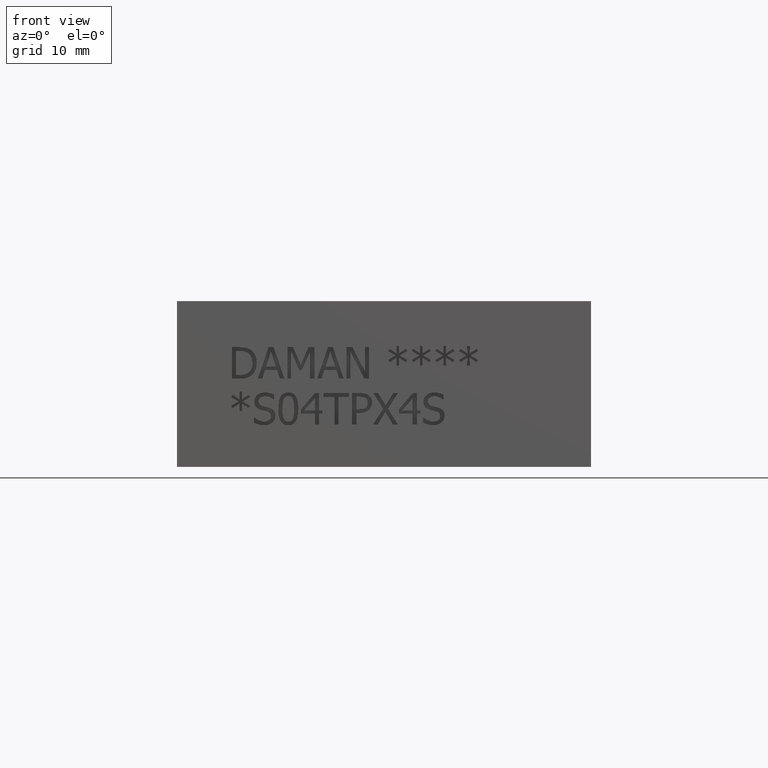
[diagram: clean part render]
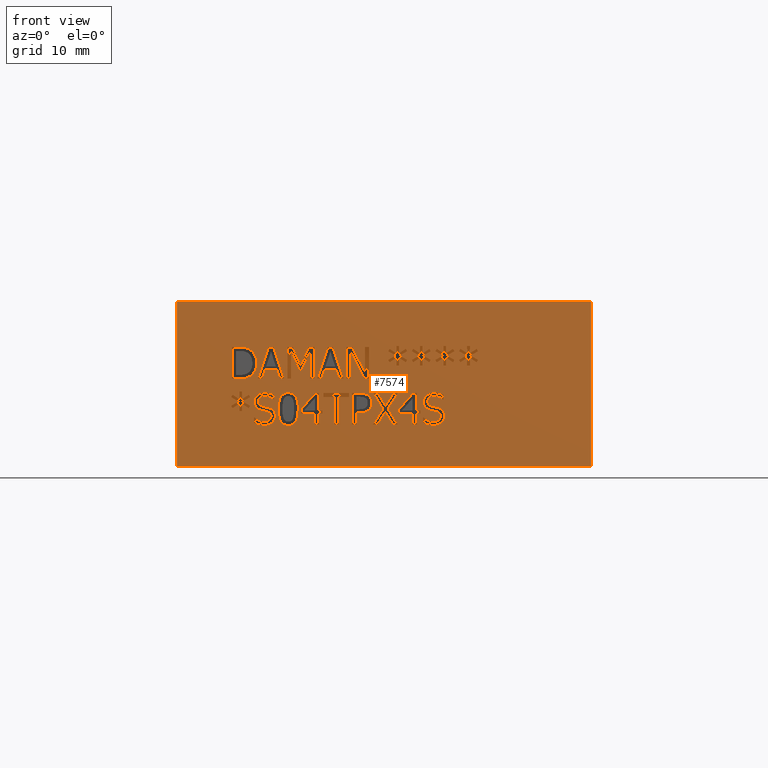
[diagram: same view with one face highlighted and labeled with its STEP entity id]
A machine part, front view. The second image highlights one B-rep face of the part: STEP entity #7574.
In plain terms, the highlighted planar face has unit normal (0, -1, 0).
Its self-contained STEP definition (entity closure, byte-faithful):
#206=FACE_BOUND('',#977,.T.);
#207=FACE_BOUND('',#978,.T.);
#208=FACE_BOUND('',#979,.T.);
#209=FACE_BOUND('',#980,.T.);
#210=FACE_BOUND('',#981,.T.);
#211=FACE_BOUND('',#982,.T.);
#212=FACE_BOUND('',#983,.T.);
#213=FACE_BOUND('',#984,.T.);
#214=FACE_BOUND('',#985,.T.);
#215=FACE_BOUND('',#986,.T.);
#216=FACE_BOUND('',#987,.T.);
#217=FACE_BOUND('',#988,.T.);
#218=FACE_BOUND('',#989,.T.);
#219=FACE_BOUND('',#990,.T.);
#220=FACE_BOUND('',#991,.T.);
#221=FACE_BOUND('',#992,.T.);
#222=FACE_BOUND('',#993,.T.);
#223=FACE_BOUND('',#994,.T.);
#267=B_SPLINE_CURVE_WITH_KNOTS('',2,(#10208,#10209,#10210,#10211),
 .UNSPECIFIED.,.F.,.F.,(3,1,3),(0.,1.,2.),.UNSPECIFIED.);
#269=B_SPLINE_CURVE_WITH_KNOTS('',2,(#10229,#10230,#10231,#10232),
 .UNSPECIFIED.,.F.,.F.,(3,1,3),(0.,1.,2.),.UNSPECIFIED.);
#271=B_SPLINE_CURVE_WITH_KNOTS('',2,(#10278,#10279,#10280,#10281),
 .UNSPECIFIED.,.F.,.F.,(3,1,3),(0.,1.,2.),.UNSPECIFIED.);
#273=B_SPLINE_CURVE_WITH_KNOTS('',2,(#10296,#10297,#10298,#10299),
 .UNSPECIFIED.,.F.,.F.,(3,1,3),(0.,1.,2.),.UNSPECIFIED.);
#275=B_SPLINE_CURVE_WITH_KNOTS('',2,(#10315,#10316,#10317,#10318),
 .UNSPECIFIED.,.F.,.F.,(3,1,3),(0.,1.,2.),.UNSPECIFIED.);
#277=B_SPLINE_CURVE_WITH_KNOTS('',2,(#10336,#10337,#10338,#10339),
 .UNSPECIFIED.,.F.,.F.,(3,1,3),(0.,1.,2.),.UNSPECIFIED.);
#279=B_SPLINE_CURVE_WITH_KNOTS('',2,(#10355,#10356,#10357,#10358),
 .UNSPECIFIED.,.F.,.F.,(3,1,3),(0.,1.,2.),.UNSPECIFIED.);
#281=B_SPLINE_CURVE_WITH_KNOTS('',2,(#10374,#10375,#10376,#10377),
 .UNSPECIFIED.,.F.,.F.,(3,1,3),(0.,1.,2.),.UNSPECIFIED.);
#283=B_SPLINE_CURVE_WITH_KNOTS('',2,(#10393,#10394,#10395,#10396),
 .UNSPECIFIED.,.F.,.F.,(3,1,3),(0.,1.,2.),.UNSPECIFIED.);
#285=B_SPLINE_CURVE_WITH_KNOTS('',2,(#10412,#10413,#10414,#10415),
 .UNSPECIFIED.,.F.,.F.,(3,1,3),(0.,1.,2.),.UNSPECIFIED.);
#287=B_SPLINE_CURVE_WITH_KNOTS('',2,(#10431,#10432,#10433,#10434),
 .UNSPECIFIED.,.F.,.F.,(3,1,3),(0.,1.,2.),.UNSPECIFIED.);
#289=B_SPLINE_CURVE_WITH_KNOTS('',2,(#10462,#10463,#10464,#10465),
 .UNSPECIFIED.,.F.,.F.,(3,1,3),(0.,1.,2.),.UNSPECIFIED.);
#291=B_SPLINE_CURVE_WITH_KNOTS('',2,(#10481,#10482,#10483,#10484),
 .UNSPECIFIED.,.F.,.F.,(3,1,3),(0.,1.,2.),.UNSPECIFIED.);
#293=B_SPLINE_CURVE_WITH_KNOTS('',2,(#10500,#10501,#10502,#10503),
 .UNSPECIFIED.,.F.,.F.,(3,1,3),(0.,1.,2.),.UNSPECIFIED.);
#295=B_SPLINE_CURVE_WITH_KNOTS('',2,(#10519,#10520,#10521,#10522),
 .UNSPECIFIED.,.F.,.F.,(3,1,3),(0.,1.,2.),.UNSPECIFIED.);
#297=B_SPLINE_CURVE_WITH_KNOTS('',2,(#10538,#10539,#10540,#10541),
 .UNSPECIFIED.,.F.,.F.,(3,1,3),(0.,1.,2.),.UNSPECIFIED.);
#299=B_SPLINE_CURVE_WITH_KNOTS('',2,(#10557,#10558,#10559,#10560),
 .UNSPECIFIED.,.F.,.F.,(3,1,3),(0.,1.,2.),.UNSPECIFIED.);
#301=B_SPLINE_CURVE_WITH_KNOTS('',2,(#10576,#10577,#10578,#10579),
 .UNSPECIFIED.,.F.,.F.,(3,1,3),(0.,1.,2.),.UNSPECIFIED.);
#303=B_SPLINE_CURVE_WITH_KNOTS('',2,(#10595,#10596,#10597,#10598),
 .UNSPECIFIED.,.F.,.F.,(3,1,3),(0.,1.,2.),.UNSPECIFIED.);
#305=B_SPLINE_CURVE_WITH_KNOTS('',2,(#10625,#10626,#10627,#10628),
 .UNSPECIFIED.,.F.,.F.,(3,1,3),(0.,1.,2.),.UNSPECIFIED.);
#323=B_SPLINE_CURVE_WITH_KNOTS('',2,(#10905,#10906,#10907,#10908),
 .UNSPECIFIED.,.F.,.F.,(3,1,3),(0.,1.,2.),.UNSPECIFIED.);
#325=B_SPLINE_CURVE_WITH_KNOTS('',2,(#10926,#10927,#10928,#10929),
 .UNSPECIFIED.,.F.,.F.,(3,1,3),(0.,1.,2.),.UNSPECIFIED.);
#327=B_SPLINE_CURVE_WITH_KNOTS('',2,(#10945,#10946,#10947,#10948),
 .UNSPECIFIED.,.F.,.F.,(3,1,3),(0.,1.,2.),.UNSPECIFIED.);
#329=B_SPLINE_CURVE_WITH_KNOTS('',2,(#10963,#10964,#10965,#10966),
 .UNSPECIFIED.,.F.,.F.,(3,1,3),(0.,1.,2.),.UNSPECIFIED.);
#331=B_SPLINE_CURVE_WITH_KNOTS('',2,(#11201,#11202,#11203,#11204),
 .UNSPECIFIED.,.F.,.F.,(3,1,3),(0.,1.,2.),.UNSPECIFIED.);
#333=B_SPLINE_CURVE_WITH_KNOTS('',2,(#11222,#11223,#11224,#11225),
 .UNSPECIFIED.,.F.,.F.,(3,1,3),(0.,1.,2.),.UNSPECIFIED.);
#335=B_SPLINE_CURVE_WITH_KNOTS('',2,(#11241,#11242,#11243,#11244),
 .UNSPECIFIED.,.F.,.F.,(3,1,3),(0.,1.,2.),.UNSPECIFIED.);
#337=B_SPLINE_CURVE_WITH_KNOTS('',2,(#11260,#11261,#11262,#11263),
 .UNSPECIFIED.,.F.,.F.,(3,1,3),(0.,1.,2.),.UNSPECIFIED.);
#339=B_SPLINE_CURVE_WITH_KNOTS('',2,(#11279,#11280,#11281,#11282),
 .UNSPECIFIED.,.F.,.F.,(3,1,3),(0.,1.,2.),.UNSPECIFIED.);
#341=B_SPLINE_CURVE_WITH_KNOTS('',2,(#11298,#11299,#11300,#11301),
 .UNSPECIFIED.,.F.,.F.,(3,1,3),(0.,1.,2.),.UNSPECIFIED.);
#343=B_SPLINE_CURVE_WITH_KNOTS('',2,(#11317,#11318,#11319,#11320),
 .UNSPECIFIED.,.F.,.F.,(3,1,3),(0.,1.,2.),.UNSPECIFIED.);
#345=B_SPLINE_CURVE_WITH_KNOTS('',2,(#11348,#11349,#11350,#11351),
 .UNSPECIFIED.,.F.,.F.,(3,1,3),(0.,1.,2.),.UNSPECIFIED.);
#347=B_SPLINE_CURVE_WITH_KNOTS('',2,(#11367,#11368,#11369,#11370),
 .UNSPECIFIED.,.F.,.F.,(3,1,3),(0.,1.,2.),.UNSPECIFIED.);
#349=B_SPLINE_CURVE_WITH_KNOTS('',2,(#11386,#11387,#11388,#11389),
 .UNSPECIFIED.,.F.,.F.,(3,1,3),(0.,1.,2.),.UNSPECIFIED.);
#351=B_SPLINE_CURVE_WITH_KNOTS('',2,(#11405,#11406,#11407,#11408),
 .UNSPECIFIED.,.F.,.F.,(3,1,3),(0.,1.,2.),.UNSPECIFIED.);
#353=B_SPLINE_CURVE_WITH_KNOTS('',2,(#11424,#11425,#11426,#11427),
 .UNSPECIFIED.,.F.,.F.,(3,1,3),(0.,1.,2.),.UNSPECIFIED.);
#355=B_SPLINE_CURVE_WITH_KNOTS('',2,(#11443,#11444,#11445,#11446),
 .UNSPECIFIED.,.F.,.F.,(3,1,3),(0.,1.,2.),.UNSPECIFIED.);
#357=B_SPLINE_CURVE_WITH_KNOTS('',2,(#11462,#11463,#11464,#11465),
 .UNSPECIFIED.,.F.,.F.,(3,1,3),(0.,1.,2.),.UNSPECIFIED.);
#359=B_SPLINE_CURVE_WITH_KNOTS('',2,(#11481,#11482,#11483,#11484),
 .UNSPECIFIED.,.F.,.F.,(3,1,3),(0.,1.,2.),.UNSPECIFIED.);
#361=B_SPLINE_CURVE_WITH_KNOTS('',2,(#11511,#11512,#11513,#11514),
 .UNSPECIFIED.,.F.,.F.,(3,1,3),(0.,1.,2.),.UNSPECIFIED.);
#363=B_SPLINE_CURVE_WITH_KNOTS('',2,(#11639,#11640,#11641,#11642),
 .UNSPECIFIED.,.F.,.F.,(3,1,3),(0.,1.,2.),.UNSPECIFIED.);
#364=B_SPLINE_CURVE_WITH_KNOTS('',2,(#11644,#11645,#11646,#11647),
 .UNSPECIFIED.,.F.,.F.,(3,1,3),(0.,1.,2.),.UNSPECIFIED.);
#365=B_SPLINE_CURVE_WITH_KNOTS('',2,(#11649,#11650,#11651,#11652),
 .UNSPECIFIED.,.F.,.F.,(3,1,3),(0.,1.,2.),.UNSPECIFIED.);
#366=B_SPLINE_CURVE_WITH_KNOTS('',2,(#11659,#11660,#11661,#11662),
 .UNSPECIFIED.,.F.,.F.,(3,1,3),(0.,1.,2.),.UNSPECIFIED.);
#582=FACE_OUTER_BOUND('',#976,.T.);
#976=EDGE_LOOP('',(#5387,#5388,#5389,#5390));
#977=EDGE_LOOP('',(#5391,#5392,#5393,#5394,#5395,#5396,#5397,#5398,#5399,
#5400,#5401,#5402));
#978=EDGE_LOOP('',(#5403,#5404,#5405,#5406,#5407,#5408,#5409,#5410,#5411));
#979=EDGE_LOOP('',(#5412,#5413,#5414,#5415,#5416,#5417,#5418,#5419,#5420,
#5421,#5422,#5423,#5424,#5425,#5426,#5427,#5428,#5429,#5430,#5431));
#980=EDGE_LOOP('',(#5432,#5433,#5434,#5435,#5436,#5437,#5438,#5439,#5440,
#5441,#5442,#5443,#5444,#5445,#5446,#5447,#5448,#5449));
#981=EDGE_LOOP('',(#5450,#5451,#5452,#5453));
#982=EDGE_LOOP('',(#5454,#5455,#5456,#5457,#5458,#5459,#5460,#5461,#5462,
#5463,#5464));
#983=EDGE_LOOP('',(#5465,#5466,#5467,#5468,#5469,#5470,#5471,#5472));
#984=EDGE_LOOP('',(#5473,#5474,#5475,#5476,#5477,#5478,#5479,#5480,#5481,
#5482,#5483));
#985=EDGE_LOOP('',(#5484,#5485,#5486,#5487,#5488,#5489,#5490,#5491,#5492,
#5493,#5494,#5495,#5496,#5497,#5498,#5499,#5500,#5501,#5502,#5503));
#986=EDGE_LOOP('',(#5504,#5505,#5506,#5507,#5508,#5509,#5510,#5511,#5512,
#5513,#5514,#5515,#5516,#5517,#5518,#5519,#5520,#5521));
#987=EDGE_LOOP('',(#5522,#5523,#5524,#5525,#5526,#5527,#5528,#5529,#5530,
#5531,#5532,#5533,#5534,#5535,#5536,#5537,#5538,#5539));
#988=EDGE_LOOP('',(#5540,#5541,#5542,#5543,#5544,#5545,#5546,#5547,#5548,
#5549));
#989=EDGE_LOOP('',(#5550,#5551,#5552,#5553,#5554,#5555,#5556,#5557));
#990=EDGE_LOOP('',(#5558,#5559,#5560,#5561,#5562,#5563,#5564));
#991=EDGE_LOOP('',(#5565,#5566,#5567,#5568,#5569,#5570,#5571,#5572));
#992=EDGE_LOOP('',(#5573,#5574,#5575,#5576,#5577,#5578,#5579,#5580,#5581,
#5582,#5583,#5584,#5585));
#993=EDGE_LOOP('',(#5586,#5587,#5588,#5589,#5590,#5591,#5592,#5593,#5594,
#5595,#5596,#5597,#5598,#5599,#5600,#5601,#5602,#5603));
#994=EDGE_LOOP('',(#5604,#5605,#5606,#5607,#5608,#5609,#5610,#5611,#5612,
#5613,#5614,#5615,#5616,#5617,#5618,#5619,#5620,#5621));
#1276=LINE('',#10034,#2095);
#1280=LINE('',#10042,#2099);
#1283=LINE('',#10048,#2102);
#1286=LINE('',#10054,#2105);
#1289=LINE('',#10060,#2108);
#1292=LINE('',#10066,#2111);
#1295=LINE('',#10072,#2114);
#1298=LINE('',#10078,#2117);
#1301=LINE('',#10084,#2120);
#1304=LINE('',#10090,#2123);
#1307=LINE('',#10096,#2126);
#1310=LINE('',#10101,#2129);
#1328=LINE('',#10241,#2147);
#1331=LINE('',#10247,#2150);
#1334=LINE('',#10253,#2153);
#1337=LINE('',#10259,#2156);
#1340=LINE('',#10265,#2159);
#1352=LINE('',#10443,#2171);
#1355=LINE('',#10449,#2174);
#1366=LINE('',#10607,#2185);
#1369=LINE('',#10613,#2188);
#1372=LINE('',#10637,#2191);
#1376=LINE('',#10645,#2195);
#1379=LINE('',#10651,#2198);
#1382=LINE('',#10657,#2201);
#1385=LINE('',#10663,#2204);
#1388=LINE('',#10669,#2207);
#1391=LINE('',#10675,#2210);
#1394=LINE('',#10681,#2213);
#1397=LINE('',#10687,#2216);
#1400=LINE('',#10693,#2219);
#1403=LINE('',#10699,#2222);
#1406=LINE('',#10705,#2225);
#1409=LINE('',#10711,#2228);
#1412=LINE('',#10717,#2231);
#1415=LINE('',#10723,#2234);
#1418=LINE('',#10729,#2237);
#1421=LINE('',#10735,#2240);
#1424=LINE('',#10740,#2243);
#1447=LINE('',#10993,#2266);
#1451=LINE('',#11001,#2270);
#1454=LINE('',#11007,#2273);
#1457=LINE('',#11013,#2276);
#1460=LINE('',#11019,#2279);
#1463=LINE('',#11025,#2282);
#1466=LINE('',#11031,#2285);
#1469=LINE('',#11037,#2288);
#1472=LINE('',#11043,#2291);
#1475=LINE('',#11049,#2294);
#1478=LINE('',#11054,#2297);
#1480=LINE('',#11060,#2299);
#1484=LINE('',#11068,#2303);
#1487=LINE('',#11074,#2306);
#1490=LINE('',#11080,#2309);
#1493=LINE('',#11086,#2312);
#1496=LINE('',#11092,#2315);
#1499=LINE('',#11098,#2318);
#1502=LINE('',#11103,#2321);
#1513=LINE('',#11127,#2332);
#1517=LINE('',#11135,#2336);
#1520=LINE('',#11141,#2339);
#1523=LINE('',#11147,#2342);
#1526=LINE('',#11153,#2345);
#1529=LINE('',#11159,#2348);
#1532=LINE('',#11165,#2351);
#1535=LINE('',#11171,#2354);
#1538=LINE('',#11177,#2357);
#1541=LINE('',#11183,#2360);
#1544=LINE('',#11188,#2363);
#1554=LINE('',#11329,#2373);
#1557=LINE('',#11335,#2376);
#1568=LINE('',#11493,#2387);
#1571=LINE('',#11499,#2390);
#1574=LINE('',#11523,#2393);
#1575=LINE('',#11525,#2394);
#1576=LINE('',#11527,#2395);
#1577=LINE('',#11528,#2396);
#1578=LINE('',#11531,#2397);
#1579=LINE('',#11533,#2398);
#1580=LINE('',#11535,#2399);
#1581=LINE('',#11537,#2400);
#1582=LINE('',#11539,#2401);
#1583=LINE('',#11541,#2402);
#1584=LINE('',#11543,#2403);
#1585=LINE('',#11545,#2404);
#1586=LINE('',#11547,#2405);
#1587=LINE('',#11549,#2406);
#1588=LINE('',#11551,#2407);
#1589=LINE('',#11553,#2408);
#1590=LINE('',#11555,#2409);
#1591=LINE('',#11557,#2410);
#1592=LINE('',#11559,#2411);
#1593=LINE('',#11561,#2412);
#1594=LINE('',#11563,#2413);
#1595=LINE('',#11564,#2414);
#1596=LINE('',#11567,#2415);
#1597=LINE('',#11569,#2416);
#1598=LINE('',#11571,#2417);
#1599=LINE('',#11573,#2418);
#1600=LINE('',#11575,#2419);
#1601=LINE('',#11577,#2420);
#1602=LINE('',#11579,#2421);
#1603=LINE('',#11581,#2422);
#1604=LINE('',#11583,#2423);
#1605=LINE('',#11585,#2424);
#1606=LINE('',#11587,#2425);
#1607=LINE('',#11589,#2426);
#1608=LINE('',#11591,#2427);
#1609=LINE('',#11593,#2428);
#1610=LINE('',#11595,#2429);
#1611=LINE('',#11597,#2430);
#1612=LINE('',#11599,#2431);
#1613=LINE('',#11600,#2432);
#1614=LINE('',#11603,#2433);
#1615=LINE('',#11605,#2434);
#1616=LINE('',#11607,#2435);
#1617=LINE('',#11609,#2436);
#1618=LINE('',#11611,#2437);
#1619=LINE('',#11613,#2438);
#1620=LINE('',#11615,#2439);
#1621=LINE('',#11617,#2440);
#1622=LINE('',#11619,#2441);
#1623=LINE('',#11620,#2442);
#1624=LINE('',#11623,#2443);
#1625=LINE('',#11625,#2444);
#1626=LINE('',#11627,#2445);
#1627=LINE('',#11629,#2446);
#1628=LINE('',#11631,#2447);
#1629=LINE('',#11633,#2448);
#1630=LINE('',#11635,#2449);
#1631=LINE('',#11636,#2450);
#1632=LINE('',#11654,#2451);
#1633=LINE('',#11656,#2452);
#1634=LINE('',#11658,#2453);
#1635=LINE('',#11665,#2454);
#1636=LINE('',#11667,#2455);
#1637=LINE('',#11669,#2456);
#1638=LINE('',#11671,#2457);
#1639=LINE('',#11673,#2458);
#1640=LINE('',#11675,#2459);
#1641=LINE('',#11677,#2460);
#1642=LINE('',#11678,#2461);
#1643=LINE('',#11681,#2462);
#1644=LINE('',#11683,#2463);
#1645=LINE('',#11685,#2464);
#1646=LINE('',#11687,#2465);
#1647=LINE('',#11689,#2466);
#1648=LINE('',#11691,#2467);
#1649=LINE('',#11693,#2468);
#1650=LINE('',#11695,#2469);
#1651=LINE('',#11697,#2470);
#1652=LINE('',#11699,#2471);
#1653=LINE('',#11701,#2472);
#1654=LINE('',#11703,#2473);
#1655=LINE('',#11704,#2474);
#1656=LINE('',#11707,#2475);
#1657=LINE('',#11709,#2476);
#1658=LINE('',#11711,#2477);
#1659=LINE('',#11713,#2478);
#1660=LINE('',#11715,#2479);
#1661=LINE('',#11717,#2480);
#1662=LINE('',#11719,#2481);
#1663=LINE('',#11721,#2482);
#1664=LINE('',#11723,#2483);
#1665=LINE('',#11725,#2484);
#1666=LINE('',#11727,#2485);
#1667=LINE('',#11729,#2486);
#1668=LINE('',#11731,#2487);
#1669=LINE('',#11733,#2488);
#1670=LINE('',#11735,#2489);
#1671=LINE('',#11737,#2490);
#1672=LINE('',#11739,#2491);
#1673=LINE('',#11740,#2492);
#1674=LINE('',#11743,#2493);
#1675=LINE('',#11745,#2494);
#1676=LINE('',#11747,#2495);
#1677=LINE('',#11749,#2496);
#1678=LINE('',#11751,#2497);
#1679=LINE('',#11753,#2498);
#1680=LINE('',#11755,#2499);
#1681=LINE('',#11757,#2500);
#1682=LINE('',#11759,#2501);
#1683=LINE('',#11761,#2502);
#1684=LINE('',#11763,#2503);
#1685=LINE('',#11765,#2504);
#1686=LINE('',#11767,#2505);
#1687=LINE('',#11769,#2506);
#1688=LINE('',#11771,#2507);
#1689=LINE('',#11773,#2508);
#1690=LINE('',#11775,#2509);
#1691=LINE('',#11776,#2510);
#2095=VECTOR('',#8297,10.);
#2099=VECTOR('',#8303,10.);
#2102=VECTOR('',#8308,10.);
#2105=VECTOR('',#8313,10.);
#2108=VECTOR('',#8318,10.);
#2111=VECTOR('',#8323,10.);
#2114=VECTOR('',#8328,10.);
#2117=VECTOR('',#8333,10.);
#2120=VECTOR('',#8338,10.);
#2123=VECTOR('',#8343,10.);
#2126=VECTOR('',#8348,10.);
#2129=VECTOR('',#8353,10.);
#2147=VECTOR('',#8381,10.);
#2150=VECTOR('',#8386,10.);
#2153=VECTOR('',#8391,10.);
#2156=VECTOR('',#8396,10.);
#2159=VECTOR('',#8401,10.);
#2171=VECTOR('',#8417,10.);
#2174=VECTOR('',#8422,10.);
#2185=VECTOR('',#8435,10.);
#2188=VECTOR('',#8440,10.);
#2191=VECTOR('',#8447,10.);
#2195=VECTOR('',#8453,10.);
#2198=VECTOR('',#8458,10.);
#2201=VECTOR('',#8463,10.);
#2204=VECTOR('',#8468,10.);
#2207=VECTOR('',#8473,10.);
#2210=VECTOR('',#8478,10.);
#2213=VECTOR('',#8483,10.);
#2216=VECTOR('',#8488,10.);
#2219=VECTOR('',#8493,10.);
#2222=VECTOR('',#8498,10.);
#2225=VECTOR('',#8503,10.);
#2228=VECTOR('',#8508,10.);
#2231=VECTOR('',#8513,10.);
#2234=VECTOR('',#8518,10.);
#2237=VECTOR('',#8523,10.);
#2240=VECTOR('',#8528,10.);
#2243=VECTOR('',#8533,10.);
#2266=VECTOR('',#8568,10.);
#2270=VECTOR('',#8574,10.);
#2273=VECTOR('',#8579,10.);
#2276=VECTOR('',#8584,10.);
#2279=VECTOR('',#8589,10.);
#2282=VECTOR('',#8594,10.);
#2285=VECTOR('',#8599,10.);
#2288=VECTOR('',#8604,10.);
#2291=VECTOR('',#8609,10.);
#2294=VECTOR('',#8614,10.);
#2297=VECTOR('',#8619,10.);
#2299=VECTOR('',#8625,10.);
#2303=VECTOR('',#8631,10.);
#2306=VECTOR('',#8636,10.);
#2309=VECTOR('',#8641,10.);
#2312=VECTOR('',#8646,10.);
#2315=VECTOR('',#8651,10.);
#2318=VECTOR('',#8656,10.);
#2321=VECTOR('',#8661,10.);
#2332=VECTOR('',#8682,10.);
#2336=VECTOR('',#8688,10.);
#2339=VECTOR('',#8693,10.);
#2342=VECTOR('',#8698,10.);
#2345=VECTOR('',#8703,10.);
#2348=VECTOR('',#8708,10.);
#2351=VECTOR('',#8713,10.);
#2354=VECTOR('',#8718,10.);
#2357=VECTOR('',#8723,10.);
#2360=VECTOR('',#8728,10.);
#2363=VECTOR('',#8733,10.);
#2373=VECTOR('',#8747,10.);
#2376=VECTOR('',#8752,10.);
#2387=VECTOR('',#8765,10.);
#2390=VECTOR('',#8770,10.);
#2393=VECTOR('',#8777,10.);
#2394=VECTOR('',#8778,10.);
#2395=VECTOR('',#8779,10.);
#2396=VECTOR('',#8780,10.);
#2397=VECTOR('',#8781,10.);
#2398=VECTOR('',#8782,10.);
#2399=VECTOR('',#8783,10.);
#2400=VECTOR('',#8784,10.);
#2401=VECTOR('',#8785,10.);
#2402=VECTOR('',#8786,10.);
#2403=VECTOR('',#8787,10.);
#2404=VECTOR('',#8788,10.);
#2405=VECTOR('',#8789,10.);
#2406=VECTOR('',#8790,10.);
#2407=VECTOR('',#8791,10.);
#2408=VECTOR('',#8792,10.);
#2409=VECTOR('',#8793,10.);
#2410=VECTOR('',#8794,10.);
#2411=VECTOR('',#8795,10.);
#2412=VECTOR('',#8796,10.);
#2413=VECTOR('',#8797,10.);
#2414=VECTOR('',#8798,10.);
#2415=VECTOR('',#8799,10.);
#2416=VECTOR('',#8800,10.);
#2417=VECTOR('',#8801,10.);
#2418=VECTOR('',#8802,10.);
#2419=VECTOR('',#8803,10.);
#2420=VECTOR('',#8804,10.);
#2421=VECTOR('',#8805,10.);
#2422=VECTOR('',#8806,10.);
#2423=VECTOR('',#8807,10.);
#2424=VECTOR('',#8808,10.);
#2425=VECTOR('',#8809,10.);
#2426=VECTOR('',#8810,10.);
#2427=VECTOR('',#8811,10.);
#2428=VECTOR('',#8812,10.);
#2429=VECTOR('',#8813,10.);
#2430=VECTOR('',#8814,10.);
#2431=VECTOR('',#8815,10.);
#2432=VECTOR('',#8816,10.);
#2433=VECTOR('',#8817,10.);
#2434=VECTOR('',#8818,10.);
#2435=VECTOR('',#8819,10.);
#2436=VECTOR('',#8820,10.);
#2437=VECTOR('',#8821,10.);
#2438=VECTOR('',#8822,10.);
#2439=VECTOR('',#8823,10.);
#2440=VECTOR('',#8824,10.);
#2441=VECTOR('',#8825,10.);
#2442=VECTOR('',#8826,10.);
#2443=VECTOR('',#8827,10.);
#2444=VECTOR('',#8828,10.);
#2445=VECTOR('',#8829,10.);
#2446=VECTOR('',#8830,10.);
#2447=VECTOR('',#8831,10.);
#2448=VECTOR('',#8832,10.);
#2449=VECTOR('',#8833,10.);
#2450=VECTOR('',#8834,10.);
#2451=VECTOR('',#8835,10.);
#2452=VECTOR('',#8836,10.);
#2453=VECTOR('',#8837,10.);
#2454=VECTOR('',#8838,10.);
#2455=VECTOR('',#8839,10.);
#2456=VECTOR('',#8840,10.);
#2457=VECTOR('',#8841,10.);
#2458=VECTOR('',#8842,10.);
#2459=VECTOR('',#8843,10.);
#2460=VECTOR('',#8844,10.);
#2461=VECTOR('',#8845,10.);
#2462=VECTOR('',#8846,10.);
#2463=VECTOR('',#8847,10.);
#2464=VECTOR('',#8848,10.);
#2465=VECTOR('',#8849,10.);
#2466=VECTOR('',#8850,10.);
#2467=VECTOR('',#8851,10.);
#2468=VECTOR('',#8852,10.);
#2469=VECTOR('',#8853,10.);
#2470=VECTOR('',#8854,10.);
#2471=VECTOR('',#8855,10.);
#2472=VECTOR('',#8856,10.);
#2473=VECTOR('',#8857,10.);
#2474=VECTOR('',#8858,10.);
#2475=VECTOR('',#8859,10.);
#2476=VECTOR('',#8860,10.);
#2477=VECTOR('',#8861,10.);
#2478=VECTOR('',#8862,10.);
#2479=VECTOR('',#8863,10.);
#2480=VECTOR('',#8864,10.);
#2481=VECTOR('',#8865,10.);
#2482=VECTOR('',#8866,10.);
#2483=VECTOR('',#8867,10.);
#2484=VECTOR('',#8868,10.);
#2485=VECTOR('',#8869,10.);
#2486=VECTOR('',#8870,10.);
#2487=VECTOR('',#8871,10.);
#2488=VECTOR('',#8872,10.);
#2489=VECTOR('',#8873,10.);
#2490=VECTOR('',#8874,10.);
#2491=VECTOR('',#8875,10.);
#2492=VECTOR('',#8876,10.);
#2493=VECTOR('',#8877,10.);
#2494=VECTOR('',#8878,10.);
#2495=VECTOR('',#8879,10.);
#2496=VECTOR('',#8880,10.);
#2497=VECTOR('',#8881,10.);
#2498=VECTOR('',#8882,10.);
#2499=VECTOR('',#8883,10.);
#2500=VECTOR('',#8884,10.);
#2501=VECTOR('',#8885,10.);
#2502=VECTOR('',#8886,10.);
#2503=VECTOR('',#8887,10.);
#2504=VECTOR('',#8888,10.);
#2505=VECTOR('',#8889,10.);
#2506=VECTOR('',#8890,10.);
#2507=VECTOR('',#8891,10.);
#2508=VECTOR('',#8892,10.);
#2509=VECTOR('',#8893,10.);
#2510=VECTOR('',#8894,10.);
#2914=VERTEX_POINT('',#10032);
#2915=VERTEX_POINT('',#10033);
#2918=VERTEX_POINT('',#10041);
#2920=VERTEX_POINT('',#10047);
#2922=VERTEX_POINT('',#10053);
#2924=VERTEX_POINT('',#10059);
#2926=VERTEX_POINT('',#10065);
#2928=VERTEX_POINT('',#10071);
#2930=VERTEX_POINT('',#10077);
#2932=VERTEX_POINT('',#10083);
#2934=VERTEX_POINT('',#10089);
#2936=VERTEX_POINT('',#10095);
#2952=VERTEX_POINT('',#10206);
#2953=VERTEX_POINT('',#10207);
#2956=VERTEX_POINT('',#10228);
#2958=VERTEX_POINT('',#10240);
#2960=VERTEX_POINT('',#10246);
#2962=VERTEX_POINT('',#10252);
#2964=VERTEX_POINT('',#10258);
#2966=VERTEX_POINT('',#10264);
#2968=VERTEX_POINT('',#10277);
#2970=VERTEX_POINT('',#10313);
#2971=VERTEX_POINT('',#10314);
#2974=VERTEX_POINT('',#10335);
#2976=VERTEX_POINT('',#10354);
#2978=VERTEX_POINT('',#10373);
#2980=VERTEX_POINT('',#10392);
#2982=VERTEX_POINT('',#10411);
#2984=VERTEX_POINT('',#10430);
#2986=VERTEX_POINT('',#10442);
#2988=VERTEX_POINT('',#10448);
#2990=VERTEX_POINT('',#10461);
#2992=VERTEX_POINT('',#10480);
#2994=VERTEX_POINT('',#10499);
#2996=VERTEX_POINT('',#10518);
#2998=VERTEX_POINT('',#10537);
#3000=VERTEX_POINT('',#10556);
#3002=VERTEX_POINT('',#10575);
#3004=VERTEX_POINT('',#10594);
#3006=VERTEX_POINT('',#10606);
#3008=VERTEX_POINT('',#10612);
#3010=VERTEX_POINT('',#10635);
#3011=VERTEX_POINT('',#10636);
#3014=VERTEX_POINT('',#10644);
#3016=VERTEX_POINT('',#10650);
#3018=VERTEX_POINT('',#10656);
#3020=VERTEX_POINT('',#10662);
#3022=VERTEX_POINT('',#10668);
#3024=VERTEX_POINT('',#10674);
#3026=VERTEX_POINT('',#10680);
#3028=VERTEX_POINT('',#10686);
#3030=VERTEX_POINT('',#10692);
#3032=VERTEX_POINT('',#10698);
#3034=VERTEX_POINT('',#10704);
#3036=VERTEX_POINT('',#10710);
#3038=VERTEX_POINT('',#10716);
#3040=VERTEX_POINT('',#10722);
#3042=VERTEX_POINT('',#10728);
#3044=VERTEX_POINT('',#10734);
#3062=VERTEX_POINT('',#10903);
#3063=VERTEX_POINT('',#10904);
#3066=VERTEX_POINT('',#10925);
#3068=VERTEX_POINT('',#10944);
#3076=VERTEX_POINT('',#10991);
#3077=VERTEX_POINT('',#10992);
#3080=VERTEX_POINT('',#11000);
#3082=VERTEX_POINT('',#11006);
#3084=VERTEX_POINT('',#11012);
#3086=VERTEX_POINT('',#11018);
#3088=VERTEX_POINT('',#11024);
#3090=VERTEX_POINT('',#11030);
#3092=VERTEX_POINT('',#11036);
#3094=VERTEX_POINT('',#11042);
#3096=VERTEX_POINT('',#11048);
#3098=VERTEX_POINT('',#11058);
#3099=VERTEX_POINT('',#11059);
#3102=VERTEX_POINT('',#11067);
#3104=VERTEX_POINT('',#11073);
#3106=VERTEX_POINT('',#11079);
#3108=VERTEX_POINT('',#11085);
#3110=VERTEX_POINT('',#11091);
#3112=VERTEX_POINT('',#11097);
#3120=VERTEX_POINT('',#11125);
#3121=VERTEX_POINT('',#11126);
#3124=VERTEX_POINT('',#11134);
#3126=VERTEX_POINT('',#11140);
#3128=VERTEX_POINT('',#11146);
#3130=VERTEX_POINT('',#11152);
#3132=VERTEX_POINT('',#11158);
#3134=VERTEX_POINT('',#11164);
#3136=VERTEX_POINT('',#11170);
#3138=VERTEX_POINT('',#11176);
#3140=VERTEX_POINT('',#11182);
#3142=VERTEX_POINT('',#11199);
#3143=VERTEX_POINT('',#11200);
#3146=VERTEX_POINT('',#11221);
#3148=VERTEX_POINT('',#11240);
#3150=VERTEX_POINT('',#11259);
#3152=VERTEX_POINT('',#11278);
#3154=VERTEX_POINT('',#11297);
#3156=VERTEX_POINT('',#11316);
#3158=VERTEX_POINT('',#11328);
#3160=VERTEX_POINT('',#11334);
#3162=VERTEX_POINT('',#11347);
#3164=VERTEX_POINT('',#11366);
#3166=VERTEX_POINT('',#11385);
#3168=VERTEX_POINT('',#11404);
#3170=VERTEX_POINT('',#11423);
#3172=VERTEX_POINT('',#11442);
#3174=VERTEX_POINT('',#11461);
#3176=VERTEX_POINT('',#11480);
#3178=VERTEX_POINT('',#11492);
#3180=VERTEX_POINT('',#11498);
#3182=VERTEX_POINT('',#11521);
#3183=VERTEX_POINT('',#11522);
#3184=VERTEX_POINT('',#11524);
#3185=VERTEX_POINT('',#11526);
#3186=VERTEX_POINT('',#11529);
#3187=VERTEX_POINT('',#11530);
#3188=VERTEX_POINT('',#11532);
#3189=VERTEX_POINT('',#11534);
#3190=VERTEX_POINT('',#11536);
#3191=VERTEX_POINT('',#11538);
#3192=VERTEX_POINT('',#11540);
#3193=VERTEX_POINT('',#11542);
#3194=VERTEX_POINT('',#11544);
#3195=VERTEX_POINT('',#11546);
#3196=VERTEX_POINT('',#11548);
#3197=VERTEX_POINT('',#11550);
#3198=VERTEX_POINT('',#11552);
#3199=VERTEX_POINT('',#11554);
#3200=VERTEX_POINT('',#11556);
#3201=VERTEX_POINT('',#11558);
#3202=VERTEX_POINT('',#11560);
#3203=VERTEX_POINT('',#11562);
#3204=VERTEX_POINT('',#11565);
#3205=VERTEX_POINT('',#11566);
#3206=VERTEX_POINT('',#11568);
#3207=VERTEX_POINT('',#11570);
#3208=VERTEX_POINT('',#11572);
#3209=VERTEX_POINT('',#11574);
#3210=VERTEX_POINT('',#11576);
#3211=VERTEX_POINT('',#11578);
#3212=VERTEX_POINT('',#11580);
#3213=VERTEX_POINT('',#11582);
#3214=VERTEX_POINT('',#11584);
#3215=VERTEX_POINT('',#11586);
#3216=VERTEX_POINT('',#11588);
#3217=VERTEX_POINT('',#11590);
#3218=VERTEX_POINT('',#11592);
#3219=VERTEX_POINT('',#11594);
#3220=VERTEX_POINT('',#11596);
#3221=VERTEX_POINT('',#11598);
#3222=VERTEX_POINT('',#11601);
#3223=VERTEX_POINT('',#11602);
#3224=VERTEX_POINT('',#11604);
#3225=VERTEX_POINT('',#11606);
#3226=VERTEX_POINT('',#11608);
#3227=VERTEX_POINT('',#11610);
#3228=VERTEX_POINT('',#11612);
#3229=VERTEX_POINT('',#11614);
#3230=VERTEX_POINT('',#11616);
#3231=VERTEX_POINT('',#11618);
#3232=VERTEX_POINT('',#11621);
#3233=VERTEX_POINT('',#11622);
#3234=VERTEX_POINT('',#11624);
#3235=VERTEX_POINT('',#11626);
#3236=VERTEX_POINT('',#11628);
#3237=VERTEX_POINT('',#11630);
#3238=VERTEX_POINT('',#11632);
#3239=VERTEX_POINT('',#11634);
#3240=VERTEX_POINT('',#11637);
#3241=VERTEX_POINT('',#11638);
#3242=VERTEX_POINT('',#11643);
#3243=VERTEX_POINT('',#11648);
#3244=VERTEX_POINT('',#11653);
#3245=VERTEX_POINT('',#11655);
#3246=VERTEX_POINT('',#11657);
#3247=VERTEX_POINT('',#11663);
#3248=VERTEX_POINT('',#11664);
#3249=VERTEX_POINT('',#11666);
#3250=VERTEX_POINT('',#11668);
#3251=VERTEX_POINT('',#11670);
#3252=VERTEX_POINT('',#11672);
#3253=VERTEX_POINT('',#11674);
#3254=VERTEX_POINT('',#11676);
#3255=VERTEX_POINT('',#11679);
#3256=VERTEX_POINT('',#11680);
#3257=VERTEX_POINT('',#11682);
#3258=VERTEX_POINT('',#11684);
#3259=VERTEX_POINT('',#11686);
#3260=VERTEX_POINT('',#11688);
#3261=VERTEX_POINT('',#11690);
#3262=VERTEX_POINT('',#11692);
#3263=VERTEX_POINT('',#11694);
#3264=VERTEX_POINT('',#11696);
#3265=VERTEX_POINT('',#11698);
#3266=VERTEX_POINT('',#11700);
#3267=VERTEX_POINT('',#11702);
#3268=VERTEX_POINT('',#11705);
#3269=VERTEX_POINT('',#11706);
#3270=VERTEX_POINT('',#11708);
#3271=VERTEX_POINT('',#11710);
#3272=VERTEX_POINT('',#11712);
#3273=VERTEX_POINT('',#11714);
#3274=VERTEX_POINT('',#11716);
#3275=VERTEX_POINT('',#11718);
#3276=VERTEX_POINT('',#11720);
#3277=VERTEX_POINT('',#11722);
#3278=VERTEX_POINT('',#11724);
#3279=VERTEX_POINT('',#11726);
#3280=VERTEX_POINT('',#11728);
#3281=VERTEX_POINT('',#11730);
#3282=VERTEX_POINT('',#11732);
#3283=VERTEX_POINT('',#11734);
#3284=VERTEX_POINT('',#11736);
#3285=VERTEX_POINT('',#11738);
#3286=VERTEX_POINT('',#11741);
#3287=VERTEX_POINT('',#11742);
#3288=VERTEX_POINT('',#11744);
#3289=VERTEX_POINT('',#11746);
#3290=VERTEX_POINT('',#11748);
#3291=VERTEX_POINT('',#11750);
#3292=VERTEX_POINT('',#11752);
#3293=VERTEX_POINT('',#11754);
#3294=VERTEX_POINT('',#11756);
#3295=VERTEX_POINT('',#11758);
#3296=VERTEX_POINT('',#11760);
#3297=VERTEX_POINT('',#11762);
#3298=VERTEX_POINT('',#11764);
#3299=VERTEX_POINT('',#11766);
#3300=VERTEX_POINT('',#11768);
#3301=VERTEX_POINT('',#11770);
#3302=VERTEX_POINT('',#11772);
#3303=VERTEX_POINT('',#11774);
#3650=EDGE_CURVE('',#2914,#2915,#1276,.T.);
#3654=EDGE_CURVE('',#2918,#2914,#1280,.T.);
#3657=EDGE_CURVE('',#2920,#2918,#1283,.T.);
#3660=EDGE_CURVE('',#2922,#2920,#1286,.T.);
#3663=EDGE_CURVE('',#2924,#2922,#1289,.T.);
#3666=EDGE_CURVE('',#2926,#2924,#1292,.T.);
#3669=EDGE_CURVE('',#2928,#2926,#1295,.T.);
#3672=EDGE_CURVE('',#2930,#2928,#1298,.T.);
#3675=EDGE_CURVE('',#2932,#2930,#1301,.T.);
#3678=EDGE_CURVE('',#2934,#2932,#1304,.T.);
#3681=EDGE_CURVE('',#2936,#2934,#1307,.T.);
#3684=EDGE_CURVE('',#2915,#2936,#1310,.T.);
#3707=EDGE_CURVE('',#2952,#2953,#267,.T.);
#3711=EDGE_CURVE('',#2956,#2952,#269,.T.);
#3714=EDGE_CURVE('',#2958,#2956,#1328,.T.);
#3717=EDGE_CURVE('',#2960,#2958,#1331,.T.);
#3720=EDGE_CURVE('',#2962,#2960,#1334,.T.);
#3723=EDGE_CURVE('',#2964,#2962,#1337,.T.);
#3726=EDGE_CURVE('',#2966,#2964,#1340,.T.);
#3729=EDGE_CURVE('',#2968,#2966,#271,.T.);
#3732=EDGE_CURVE('',#2953,#2968,#273,.T.);
#3734=EDGE_CURVE('',#2970,#2971,#275,.T.);
#3738=EDGE_CURVE('',#2974,#2970,#277,.T.);
#3741=EDGE_CURVE('',#2976,#2974,#279,.T.);
#3744=EDGE_CURVE('',#2978,#2976,#281,.T.);
#3747=EDGE_CURVE('',#2980,#2978,#283,.T.);
#3750=EDGE_CURVE('',#2982,#2980,#285,.T.);
#3753=EDGE_CURVE('',#2984,#2982,#287,.T.);
#3756=EDGE_CURVE('',#2986,#2984,#1352,.T.);
#3759=EDGE_CURVE('',#2988,#2986,#1355,.T.);
#3762=EDGE_CURVE('',#2990,#2988,#289,.T.);
#3765=EDGE_CURVE('',#2992,#2990,#291,.T.);
#3768=EDGE_CURVE('',#2994,#2992,#293,.T.);
#3771=EDGE_CURVE('',#2996,#2994,#295,.T.);
#3774=EDGE_CURVE('',#2998,#2996,#297,.T.);
#3777=EDGE_CURVE('',#3000,#2998,#299,.T.);
#3780=EDGE_CURVE('',#3002,#3000,#301,.T.);
#3783=EDGE_CURVE('',#3004,#3002,#303,.T.);
#3786=EDGE_CURVE('',#3006,#3004,#1366,.T.);
#3789=EDGE_CURVE('',#3008,#3006,#1369,.T.);
#3792=EDGE_CURVE('',#2971,#3008,#305,.T.);
#3794=EDGE_CURVE('',#3010,#3011,#1372,.T.);
#3798=EDGE_CURVE('',#3014,#3010,#1376,.T.);
#3801=EDGE_CURVE('',#3016,#3014,#1379,.T.);
#3804=EDGE_CURVE('',#3018,#3016,#1382,.T.);
#3807=EDGE_CURVE('',#3020,#3018,#1385,.T.);
#3810=EDGE_CURVE('',#3022,#3020,#1388,.T.);
#3813=EDGE_CURVE('',#3024,#3022,#1391,.T.);
#3816=EDGE_CURVE('',#3026,#3024,#1394,.T.);
#3819=EDGE_CURVE('',#3028,#3026,#1397,.T.);
#3822=EDGE_CURVE('',#3030,#3028,#1400,.T.);
#3825=EDGE_CURVE('',#3032,#3030,#1403,.T.);
#3828=EDGE_CURVE('',#3034,#3032,#1406,.T.);
#3831=EDGE_CURVE('',#3036,#3034,#1409,.T.);
#3834=EDGE_CURVE('',#3038,#3036,#1412,.T.);
#3837=EDGE_CURVE('',#3040,#3038,#1415,.T.);
#3840=EDGE_CURVE('',#3042,#3040,#1418,.T.);
#3843=EDGE_CURVE('',#3044,#3042,#1421,.T.);
#3846=EDGE_CURVE('',#3011,#3044,#1424,.T.);
#3872=EDGE_CURVE('',#3062,#3063,#323,.T.);
#3876=EDGE_CURVE('',#3066,#3062,#325,.T.);
#3879=EDGE_CURVE('',#3068,#3066,#327,.T.);
#3882=EDGE_CURVE('',#3063,#3068,#329,.T.);
#3893=EDGE_CURVE('',#3076,#3077,#1447,.T.);
#3897=EDGE_CURVE('',#3080,#3076,#1451,.T.);
#3900=EDGE_CURVE('',#3082,#3080,#1454,.T.);
#3903=EDGE_CURVE('',#3084,#3082,#1457,.T.);
#3906=EDGE_CURVE('',#3086,#3084,#1460,.T.);
#3909=EDGE_CURVE('',#3088,#3086,#1463,.T.);
#3912=EDGE_CURVE('',#3090,#3088,#1466,.T.);
#3915=EDGE_CURVE('',#3092,#3090,#1469,.T.);
#3918=EDGE_CURVE('',#3094,#3092,#1472,.T.);
#3921=EDGE_CURVE('',#3096,#3094,#1475,.T.);
#3924=EDGE_CURVE('',#3077,#3096,#1478,.T.);
#3926=EDGE_CURVE('',#3098,#3099,#1480,.T.);
#3930=EDGE_CURVE('',#3102,#3098,#1484,.T.);
#3933=EDGE_CURVE('',#3104,#3102,#1487,.T.);
#3936=EDGE_CURVE('',#3106,#3104,#1490,.T.);
#3939=EDGE_CURVE('',#3108,#3106,#1493,.T.);
#3942=EDGE_CURVE('',#3110,#3108,#1496,.T.);
#3945=EDGE_CURVE('',#3112,#3110,#1499,.T.);
#3948=EDGE_CURVE('',#3099,#3112,#1502,.T.);
#3959=EDGE_CURVE('',#3120,#3121,#1513,.T.);
#3963=EDGE_CURVE('',#3124,#3120,#1517,.T.);
#3966=EDGE_CURVE('',#3126,#3124,#1520,.T.);
#3969=EDGE_CURVE('',#3128,#3126,#1523,.T.);
#3972=EDGE_CURVE('',#3130,#3128,#1526,.T.);
#3975=EDGE_CURVE('',#3132,#3130,#1529,.T.);
#3978=EDGE_CURVE('',#3134,#3132,#1532,.T.);
#3981=EDGE_CURVE('',#3136,#3134,#1535,.T.);
#3984=EDGE_CURVE('',#3138,#3136,#1538,.T.);
#3987=EDGE_CURVE('',#3140,#3138,#1541,.T.);
#3990=EDGE_CURVE('',#3121,#3140,#1544,.T.);
#3992=EDGE_CURVE('',#3142,#3143,#331,.T.);
#3996=EDGE_CURVE('',#3146,#3142,#333,.T.);
#3999=EDGE_CURVE('',#3148,#3146,#335,.T.);
#4002=EDGE_CURVE('',#3150,#3148,#337,.T.);
#4005=EDGE_CURVE('',#3152,#3150,#339,.T.);
#4008=EDGE_CURVE('',#3154,#3152,#341,.T.);
#4011=EDGE_CURVE('',#3156,#3154,#343,.T.);
#4014=EDGE_CURVE('',#3158,#3156,#1554,.T.);
#4017=EDGE_CURVE('',#3160,#3158,#1557,.T.);
#4020=EDGE_CURVE('',#3162,#3160,#345,.T.);
#4023=EDGE_CURVE('',#3164,#3162,#347,.T.);
#4026=EDGE_CURVE('',#3166,#3164,#349,.T.);
#4029=EDGE_CURVE('',#3168,#3166,#351,.T.);
#4032=EDGE_CURVE('',#3170,#3168,#353,.T.);
#4035=EDGE_CURVE('',#3172,#3170,#355,.T.);
#4038=EDGE_CURVE('',#3174,#3172,#357,.T.);
#4041=EDGE_CURVE('',#3176,#3174,#359,.T.);
#4044=EDGE_CURVE('',#3178,#3176,#1568,.T.);
#4047=EDGE_CURVE('',#3180,#3178,#1571,.T.);
#4050=EDGE_CURVE('',#3143,#3180,#361,.T.);
#4052=EDGE_CURVE('',#3182,#3183,#1574,.T.);
#4053=EDGE_CURVE('',#3183,#3184,#1575,.T.);
#4054=EDGE_CURVE('',#3185,#3184,#1576,.T.);
#4055=EDGE_CURVE('',#3182,#3185,#1577,.T.);
#4056=EDGE_CURVE('',#3186,#3187,#1578,.T.);
#4057=EDGE_CURVE('',#3187,#3188,#1579,.T.);
#4058=EDGE_CURVE('',#3188,#3189,#1580,.T.);
#4059=EDGE_CURVE('',#3189,#3190,#1581,.T.);
#4060=EDGE_CURVE('',#3190,#3191,#1582,.T.);
#4061=EDGE_CURVE('',#3191,#3192,#1583,.T.);
#4062=EDGE_CURVE('',#3192,#3193,#1584,.T.);
#4063=EDGE_CURVE('',#3193,#3194,#1585,.T.);
#4064=EDGE_CURVE('',#3194,#3195,#1586,.T.);
#4065=EDGE_CURVE('',#3195,#3196,#1587,.T.);
#4066=EDGE_CURVE('',#3196,#3197,#1588,.T.);
#4067=EDGE_CURVE('',#3197,#3198,#1589,.T.);
#4068=EDGE_CURVE('',#3198,#3199,#1590,.T.);
#4069=EDGE_CURVE('',#3199,#3200,#1591,.T.);
#4070=EDGE_CURVE('',#3200,#3201,#1592,.T.);
#4071=EDGE_CURVE('',#3201,#3202,#1593,.T.);
#4072=EDGE_CURVE('',#3202,#3203,#1594,.T.);
#4073=EDGE_CURVE('',#3203,#3186,#1595,.T.);
#4074=EDGE_CURVE('',#3204,#3205,#1596,.T.);
#4075=EDGE_CURVE('',#3205,#3206,#1597,.T.);
#4076=EDGE_CURVE('',#3206,#3207,#1598,.T.);
#4077=EDGE_CURVE('',#3207,#3208,#1599,.T.);
#4078=EDGE_CURVE('',#3208,#3209,#1600,.T.);
#4079=EDGE_CURVE('',#3209,#3210,#1601,.T.);
#4080=EDGE_CURVE('',#3210,#3211,#1602,.T.);
#4081=EDGE_CURVE('',#3211,#3212,#1603,.T.);
#4082=EDGE_CURVE('',#3212,#3213,#1604,.T.);
#4083=EDGE_CURVE('',#3213,#3214,#1605,.T.);
#4084=EDGE_CURVE('',#3214,#3215,#1606,.T.);
#4085=EDGE_CURVE('',#3215,#3216,#1607,.T.);
#4086=EDGE_CURVE('',#3216,#3217,#1608,.T.);
#4087=EDGE_CURVE('',#3217,#3218,#1609,.T.);
#4088=EDGE_CURVE('',#3218,#3219,#1610,.T.);
#4089=EDGE_CURVE('',#3219,#3220,#1611,.T.);
#4090=EDGE_CURVE('',#3220,#3221,#1612,.T.);
#4091=EDGE_CURVE('',#3221,#3204,#1613,.T.);
#4092=EDGE_CURVE('',#3222,#3223,#1614,.T.);
#4093=EDGE_CURVE('',#3223,#3224,#1615,.T.);
#4094=EDGE_CURVE('',#3224,#3225,#1616,.T.);
#4095=EDGE_CURVE('',#3225,#3226,#1617,.T.);
#4096=EDGE_CURVE('',#3226,#3227,#1618,.T.);
#4097=EDGE_CURVE('',#3227,#3228,#1619,.T.);
#4098=EDGE_CURVE('',#3228,#3229,#1620,.T.);
#4099=EDGE_CURVE('',#3229,#3230,#1621,.T.);
#4100=EDGE_CURVE('',#3230,#3231,#1622,.T.);
#4101=EDGE_CURVE('',#3231,#3222,#1623,.T.);
#4102=EDGE_CURVE('',#3232,#3233,#1624,.T.);
#4103=EDGE_CURVE('',#3233,#3234,#1625,.T.);
#4104=EDGE_CURVE('',#3234,#3235,#1626,.T.);
#4105=EDGE_CURVE('',#3235,#3236,#1627,.T.);
#4106=EDGE_CURVE('',#3236,#3237,#1628,.T.);
#4107=EDGE_CURVE('',#3237,#3238,#1629,.T.);
#4108=EDGE_CURVE('',#3238,#3239,#1630,.T.);
#4109=EDGE_CURVE('',#3239,#3232,#1631,.T.);
#4110=EDGE_CURVE('',#3240,#3241,#363,.T.);
#4111=EDGE_CURVE('',#3241,#3242,#364,.T.);
#4112=EDGE_CURVE('',#3242,#3243,#365,.T.);
#4113=EDGE_CURVE('',#3243,#3244,#1632,.T.);
#4114=EDGE_CURVE('',#3244,#3245,#1633,.T.);
#4115=EDGE_CURVE('',#3245,#3246,#1634,.T.);
#4116=EDGE_CURVE('',#3246,#3240,#366,.T.);
#4117=EDGE_CURVE('',#3247,#3248,#1635,.T.);
#4118=EDGE_CURVE('',#3248,#3249,#1636,.T.);
#4119=EDGE_CURVE('',#3249,#3250,#1637,.T.);
#4120=EDGE_CURVE('',#3250,#3251,#1638,.T.);
#4121=EDGE_CURVE('',#3251,#3252,#1639,.T.);
#4122=EDGE_CURVE('',#3252,#3253,#1640,.T.);
#4123=EDGE_CURVE('',#3253,#3254,#1641,.T.);
#4124=EDGE_CURVE('',#3254,#3247,#1642,.T.);
#4125=EDGE_CURVE('',#3255,#3256,#1643,.T.);
#4126=EDGE_CURVE('',#3256,#3257,#1644,.T.);
#4127=EDGE_CURVE('',#3257,#3258,#1645,.T.);
#4128=EDGE_CURVE('',#3258,#3259,#1646,.T.);
#4129=EDGE_CURVE('',#3259,#3260,#1647,.T.);
#4130=EDGE_CURVE('',#3260,#3261,#1648,.T.);
#4131=EDGE_CURVE('',#3261,#3262,#1649,.T.);
#4132=EDGE_CURVE('',#3262,#3263,#1650,.T.);
#4133=EDGE_CURVE('',#3263,#3264,#1651,.T.);
#4134=EDGE_CURVE('',#3264,#3265,#1652,.T.);
#4135=EDGE_CURVE('',#3265,#3266,#1653,.T.);
#4136=EDGE_CURVE('',#3266,#3267,#1654,.T.);
#4137=EDGE_CURVE('',#3267,#3255,#1655,.T.);
#4138=EDGE_CURVE('',#3268,#3269,#1656,.T.);
#4139=EDGE_CURVE('',#3269,#3270,#1657,.T.);
#4140=EDGE_CURVE('',#3270,#3271,#1658,.T.);
#4141=EDGE_CURVE('',#3271,#3272,#1659,.T.);
#4142=EDGE_CURVE('',#3272,#3273,#1660,.T.);
#4143=EDGE_CURVE('',#3273,#3274,#1661,.T.);
#4144=EDGE_CURVE('',#3274,#3275,#1662,.T.);
#4145=EDGE_CURVE('',#3275,#3276,#1663,.T.);
#4146=EDGE_CURVE('',#3276,#3277,#1664,.T.);
#4147=EDGE_CURVE('',#3277,#3278,#1665,.T.);
#4148=EDGE_CURVE('',#3278,#3279,#1666,.T.);
#4149=EDGE_CURVE('',#3279,#3280,#1667,.T.);
#4150=EDGE_CURVE('',#3280,#3281,#1668,.T.);
#4151=EDGE_CURVE('',#3281,#3282,#1669,.T.);
#4152=EDGE_CURVE('',#3282,#3283,#1670,.T.);
#4153=EDGE_CURVE('',#3283,#3284,#1671,.T.);
#4154=EDGE_CURVE('',#3284,#3285,#1672,.T.);
#4155=EDGE_CURVE('',#3285,#3268,#1673,.T.);
#4156=EDGE_CURVE('',#3286,#3287,#1674,.T.);
#4157=EDGE_CURVE('',#3287,#3288,#1675,.T.);
#4158=EDGE_CURVE('',#3288,#3289,#1676,.T.);
#4159=EDGE_CURVE('',#3289,#3290,#1677,.T.);
#4160=EDGE_CURVE('',#3290,#3291,#1678,.T.);
#4161=EDGE_CURVE('',#3291,#3292,#1679,.T.);
#4162=EDGE_CURVE('',#3292,#3293,#1680,.T.);
#4163=EDGE_CURVE('',#3293,#3294,#1681,.T.);
#4164=EDGE_CURVE('',#3294,#3295,#1682,.T.);
#4165=EDGE_CURVE('',#3295,#3296,#1683,.T.);
#4166=EDGE_CURVE('',#3296,#3297,#1684,.T.);
#4167=EDGE_CURVE('',#3297,#3298,#1685,.T.);
#4168=EDGE_CURVE('',#3298,#3299,#1686,.T.);
#4169=EDGE_CURVE('',#3299,#3300,#1687,.T.);
#4170=EDGE_CURVE('',#3300,#3301,#1688,.T.);
#4171=EDGE_CURVE('',#3301,#3302,#1689,.T.);
#4172=EDGE_CURVE('',#3302,#3303,#1690,.T.);
#4173=EDGE_CURVE('',#3303,#3286,#1691,.T.);
#5387=ORIENTED_EDGE('',*,*,#4052,.T.);
#5388=ORIENTED_EDGE('',*,*,#4053,.T.);
#5389=ORIENTED_EDGE('',*,*,#4054,.F.);
#5390=ORIENTED_EDGE('',*,*,#4055,.F.);
#5391=ORIENTED_EDGE('',*,*,#3650,.T.);
#5392=ORIENTED_EDGE('',*,*,#3684,.T.);
#5393=ORIENTED_EDGE('',*,*,#3681,.T.);
#5394=ORIENTED_EDGE('',*,*,#3678,.T.);
#5395=ORIENTED_EDGE('',*,*,#3675,.T.);
#5396=ORIENTED_EDGE('',*,*,#3672,.T.);
#5397=ORIENTED_EDGE('',*,*,#3669,.T.);
#5398=ORIENTED_EDGE('',*,*,#3666,.T.);
#5399=ORIENTED_EDGE('',*,*,#3663,.T.);
#5400=ORIENTED_EDGE('',*,*,#3660,.T.);
#5401=ORIENTED_EDGE('',*,*,#3657,.T.);
#5402=ORIENTED_EDGE('',*,*,#3654,.T.);
#5403=ORIENTED_EDGE('',*,*,#3707,.T.);
#5404=ORIENTED_EDGE('',*,*,#3732,.T.);
#5405=ORIENTED_EDGE('',*,*,#3729,.T.);
#5406=ORIENTED_EDGE('',*,*,#3726,.T.);
#5407=ORIENTED_EDGE('',*,*,#3723,.T.);
#5408=ORIENTED_EDGE('',*,*,#3720,.T.);
#5409=ORIENTED_EDGE('',*,*,#3717,.T.);
#5410=ORIENTED_EDGE('',*,*,#3714,.T.);
#5411=ORIENTED_EDGE('',*,*,#3711,.T.);
#5412=ORIENTED_EDGE('',*,*,#3734,.T.);
#5413=ORIENTED_EDGE('',*,*,#3792,.T.);
#5414=ORIENTED_EDGE('',*,*,#3789,.T.);
#5415=ORIENTED_EDGE('',*,*,#3786,.T.);
#5416=ORIENTED_EDGE('',*,*,#3783,.T.);
#5417=ORIENTED_EDGE('',*,*,#3780,.T.);
#5418=ORIENTED_EDGE('',*,*,#3777,.T.);
#5419=ORIENTED_EDGE('',*,*,#3774,.T.);
#5420=ORIENTED_EDGE('',*,*,#3771,.T.);
#5421=ORIENTED_EDGE('',*,*,#3768,.T.);
#5422=ORIENTED_EDGE('',*,*,#3765,.T.);
#5423=ORIENTED_EDGE('',*,*,#3762,.T.);
#5424=ORIENTED_EDGE('',*,*,#3759,.T.);
#5425=ORIENTED_EDGE('',*,*,#3756,.T.);
#5426=ORIENTED_EDGE('',*,*,#3753,.T.);
#5427=ORIENTED_EDGE('',*,*,#3750,.T.);
#5428=ORIENTED_EDGE('',*,*,#3747,.T.);
#5429=ORIENTED_EDGE('',*,*,#3744,.T.);
#5430=ORIENTED_EDGE('',*,*,#3741,.T.);
#5431=ORIENTED_EDGE('',*,*,#3738,.T.);
#5432=ORIENTED_EDGE('',*,*,#3794,.T.);
#5433=ORIENTED_EDGE('',*,*,#3846,.T.);
#5434=ORIENTED_EDGE('',*,*,#3843,.T.);
#5435=ORIENTED_EDGE('',*,*,#3840,.T.);
#5436=ORIENTED_EDGE('',*,*,#3837,.T.);
#5437=ORIENTED_EDGE('',*,*,#3834,.T.);
#5438=ORIENTED_EDGE('',*,*,#3831,.T.);
#5439=ORIENTED_EDGE('',*,*,#3828,.T.);
#5440=ORIENTED_EDGE('',*,*,#3825,.T.);
#5441=ORIENTED_EDGE('',*,*,#3822,.T.);
#5442=ORIENTED_EDGE('',*,*,#3819,.T.);
#5443=ORIENTED_EDGE('',*,*,#3816,.T.);
#5444=ORIENTED_EDGE('',*,*,#3813,.T.);
#5445=ORIENTED_EDGE('',*,*,#3810,.T.);
#5446=ORIENTED_EDGE('',*,*,#3807,.T.);
#5447=ORIENTED_EDGE('',*,*,#3804,.T.);
#5448=ORIENTED_EDGE('',*,*,#3801,.T.);
#5449=ORIENTED_EDGE('',*,*,#3798,.T.);
#5450=ORIENTED_EDGE('',*,*,#3872,.T.);
#5451=ORIENTED_EDGE('',*,*,#3882,.T.);
#5452=ORIENTED_EDGE('',*,*,#3879,.T.);
#5453=ORIENTED_EDGE('',*,*,#3876,.T.);
#5454=ORIENTED_EDGE('',*,*,#3893,.T.);
#5455=ORIENTED_EDGE('',*,*,#3924,.T.);
#5456=ORIENTED_EDGE('',*,*,#3921,.T.);
#5457=ORIENTED_EDGE('',*,*,#3918,.T.);
#5458=ORIENTED_EDGE('',*,*,#3915,.T.);
#5459=ORIENTED_EDGE('',*,*,#3912,.T.);
#5460=ORIENTED_EDGE('',*,*,#3909,.T.);
#5461=ORIENTED_EDGE('',*,*,#3906,.T.);
#5462=ORIENTED_EDGE('',*,*,#3903,.T.);
#5463=ORIENTED_EDGE('',*,*,#3900,.T.);
#5464=ORIENTED_EDGE('',*,*,#3897,.T.);
#5465=ORIENTED_EDGE('',*,*,#3926,.T.);
#5466=ORIENTED_EDGE('',*,*,#3948,.T.);
#5467=ORIENTED_EDGE('',*,*,#3945,.T.);
#5468=ORIENTED_EDGE('',*,*,#3942,.T.);
#5469=ORIENTED_EDGE('',*,*,#3939,.T.);
#5470=ORIENTED_EDGE('',*,*,#3936,.T.);
#5471=ORIENTED_EDGE('',*,*,#3933,.T.);
#5472=ORIENTED_EDGE('',*,*,#3930,.T.);
#5473=ORIENTED_EDGE('',*,*,#3959,.T.);
#5474=ORIENTED_EDGE('',*,*,#3990,.T.);
#5475=ORIENTED_EDGE('',*,*,#3987,.T.);
#5476=ORIENTED_EDGE('',*,*,#3984,.T.);
#5477=ORIENTED_EDGE('',*,*,#3981,.T.);
#5478=ORIENTED_EDGE('',*,*,#3978,.T.);
#5479=ORIENTED_EDGE('',*,*,#3975,.T.);
#5480=ORIENTED_EDGE('',*,*,#3972,.T.);
#5481=ORIENTED_EDGE('',*,*,#3969,.T.);
#5482=ORIENTED_EDGE('',*,*,#3966,.T.);
#5483=ORIENTED_EDGE('',*,*,#3963,.T.);
#5484=ORIENTED_EDGE('',*,*,#3992,.T.);
#5485=ORIENTED_EDGE('',*,*,#4050,.T.);
#5486=ORIENTED_EDGE('',*,*,#4047,.T.);
#5487=ORIENTED_EDGE('',*,*,#4044,.T.);
#5488=ORIENTED_EDGE('',*,*,#4041,.T.);
#5489=ORIENTED_EDGE('',*,*,#4038,.T.);
#5490=ORIENTED_EDGE('',*,*,#4035,.T.);
#5491=ORIENTED_EDGE('',*,*,#4032,.T.);
#5492=ORIENTED_EDGE('',*,*,#4029,.T.);
#5493=ORIENTED_EDGE('',*,*,#4026,.T.);
#5494=ORIENTED_EDGE('',*,*,#4023,.T.);
#5495=ORIENTED_EDGE('',*,*,#4020,.T.);
#5496=ORIENTED_EDGE('',*,*,#4017,.T.);
#5497=ORIENTED_EDGE('',*,*,#4014,.T.);
#5498=ORIENTED_EDGE('',*,*,#4011,.T.);
#5499=ORIENTED_EDGE('',*,*,#4008,.T.);
#5500=ORIENTED_EDGE('',*,*,#4005,.T.);
#5501=ORIENTED_EDGE('',*,*,#4002,.T.);
#5502=ORIENTED_EDGE('',*,*,#3999,.T.);
#5503=ORIENTED_EDGE('',*,*,#3996,.T.);
#5504=ORIENTED_EDGE('',*,*,#4056,.T.);
#5505=ORIENTED_EDGE('',*,*,#4057,.T.);
#5506=ORIENTED_EDGE('',*,*,#4058,.T.);
#5507=ORIENTED_EDGE('',*,*,#4059,.T.);
#5508=ORIENTED_EDGE('',*,*,#4060,.T.);
#5509=ORIENTED_EDGE('',*,*,#4061,.T.);
#5510=ORIENTED_EDGE('',*,*,#4062,.T.);
#5511=ORIENTED_EDGE('',*,*,#4063,.T.);
#5512=ORIENTED_EDGE('',*,*,#4064,.T.);
#5513=ORIENTED_EDGE('',*,*,#4065,.T.);
#5514=ORIENTED_EDGE('',*,*,#4066,.T.);
#5515=ORIENTED_EDGE('',*,*,#4067,.T.);
#5516=ORIENTED_EDGE('',*,*,#4068,.T.);
#5517=ORIENTED_EDGE('',*,*,#4069,.T.);
#5518=ORIENTED_EDGE('',*,*,#4070,.T.);
#5519=ORIENTED_EDGE('',*,*,#4071,.T.);
#5520=ORIENTED_EDGE('',*,*,#4072,.T.);
#5521=ORIENTED_EDGE('',*,*,#4073,.T.);
#5522=ORIENTED_EDGE('',*,*,#4074,.T.);
#5523=ORIENTED_EDGE('',*,*,#4075,.T.);
#5524=ORIENTED_EDGE('',*,*,#4076,.T.);
#5525=ORIENTED_EDGE('',*,*,#4077,.T.);
#5526=ORIENTED_EDGE('',*,*,#4078,.T.);
#5527=ORIENTED_EDGE('',*,*,#4079,.T.);
#5528=ORIENTED_EDGE('',*,*,#4080,.T.);
#5529=ORIENTED_EDGE('',*,*,#4081,.T.);
#5530=ORIENTED_EDGE('',*,*,#4082,.T.);
#5531=ORIENTED_EDGE('',*,*,#4083,.T.);
#5532=ORIENTED_EDGE('',*,*,#4084,.T.);
#5533=ORIENTED_EDGE('',*,*,#4085,.T.);
#5534=ORIENTED_EDGE('',*,*,#4086,.T.);
#5535=ORIENTED_EDGE('',*,*,#4087,.T.);
#5536=ORIENTED_EDGE('',*,*,#4088,.T.);
#5537=ORIENTED_EDGE('',*,*,#4089,.T.);
#5538=ORIENTED_EDGE('',*,*,#4090,.T.);
#5539=ORIENTED_EDGE('',*,*,#4091,.T.);
#5540=ORIENTED_EDGE('',*,*,#4092,.T.);
#5541=ORIENTED_EDGE('',*,*,#4093,.T.);
#5542=ORIENTED_EDGE('',*,*,#4094,.T.);
#5543=ORIENTED_EDGE('',*,*,#4095,.T.);
#5544=ORIENTED_EDGE('',*,*,#4096,.T.);
#5545=ORIENTED_EDGE('',*,*,#4097,.T.);
#5546=ORIENTED_EDGE('',*,*,#4098,.T.);
#5547=ORIENTED_EDGE('',*,*,#4099,.T.);
#5548=ORIENTED_EDGE('',*,*,#4100,.T.);
#5549=ORIENTED_EDGE('',*,*,#4101,.T.);
#5550=ORIENTED_EDGE('',*,*,#4102,.T.);
#5551=ORIENTED_EDGE('',*,*,#4103,.T.);
#5552=ORIENTED_EDGE('',*,*,#4104,.T.);
#5553=ORIENTED_EDGE('',*,*,#4105,.T.);
#5554=ORIENTED_EDGE('',*,*,#4106,.T.);
#5555=ORIENTED_EDGE('',*,*,#4107,.T.);
#5556=ORIENTED_EDGE('',*,*,#4108,.T.);
#5557=ORIENTED_EDGE('',*,*,#4109,.T.);
#5558=ORIENTED_EDGE('',*,*,#4110,.T.);
#5559=ORIENTED_EDGE('',*,*,#4111,.T.);
#5560=ORIENTED_EDGE('',*,*,#4112,.T.);
#5561=ORIENTED_EDGE('',*,*,#4113,.T.);
#5562=ORIENTED_EDGE('',*,*,#4114,.T.);
#5563=ORIENTED_EDGE('',*,*,#4115,.T.);
#5564=ORIENTED_EDGE('',*,*,#4116,.T.);
#5565=ORIENTED_EDGE('',*,*,#4117,.T.);
#5566=ORIENTED_EDGE('',*,*,#4118,.T.);
#5567=ORIENTED_EDGE('',*,*,#4119,.T.);
#5568=ORIENTED_EDGE('',*,*,#4120,.T.);
#5569=ORIENTED_EDGE('',*,*,#4121,.T.);
#5570=ORIENTED_EDGE('',*,*,#4122,.T.);
#5571=ORIENTED_EDGE('',*,*,#4123,.T.);
#5572=ORIENTED_EDGE('',*,*,#4124,.T.);
#5573=ORIENTED_EDGE('',*,*,#4125,.T.);
#5574=ORIENTED_EDGE('',*,*,#4126,.T.);
#5575=ORIENTED_EDGE('',*,*,#4127,.T.);
#5576=ORIENTED_EDGE('',*,*,#4128,.T.);
#5577=ORIENTED_EDGE('',*,*,#4129,.T.);
#5578=ORIENTED_EDGE('',*,*,#4130,.T.);
#5579=ORIENTED_EDGE('',*,*,#4131,.T.);
#5580=ORIENTED_EDGE('',*,*,#4132,.T.);
#5581=ORIENTED_EDGE('',*,*,#4133,.T.);
#5582=ORIENTED_EDGE('',*,*,#4134,.T.);
#5583=ORIENTED_EDGE('',*,*,#4135,.T.);
#5584=ORIENTED_EDGE('',*,*,#4136,.T.);
#5585=ORIENTED_EDGE('',*,*,#4137,.T.);
#5586=ORIENTED_EDGE('',*,*,#4138,.T.);
#5587=ORIENTED_EDGE('',*,*,#4139,.T.);
#5588=ORIENTED_EDGE('',*,*,#4140,.T.);
#5589=ORIENTED_EDGE('',*,*,#4141,.T.);
#5590=ORIENTED_EDGE('',*,*,#4142,.T.);
#5591=ORIENTED_EDGE('',*,*,#4143,.T.);
#5592=ORIENTED_EDGE('',*,*,#4144,.T.);
#5593=ORIENTED_EDGE('',*,*,#4145,.T.);
#5594=ORIENTED_EDGE('',*,*,#4146,.T.);
#5595=ORIENTED_EDGE('',*,*,#4147,.T.);
#5596=ORIENTED_EDGE('',*,*,#4148,.T.);
#5597=ORIENTED_EDGE('',*,*,#4149,.T.);
#5598=ORIENTED_EDGE('',*,*,#4150,.T.);
#5599=ORIENTED_EDGE('',*,*,#4151,.T.);
#5600=ORIENTED_EDGE('',*,*,#4152,.T.);
#5601=ORIENTED_EDGE('',*,*,#4153,.T.);
#5602=ORIENTED_EDGE('',*,*,#4154,.T.);
#5603=ORIENTED_EDGE('',*,*,#4155,.T.);
#5604=ORIENTED_EDGE('',*,*,#4156,.T.);
#5605=ORIENTED_EDGE('',*,*,#4157,.T.);
#5606=ORIENTED_EDGE('',*,*,#4158,.T.);
#5607=ORIENTED_EDGE('',*,*,#4159,.T.);
#5608=ORIENTED_EDGE('',*,*,#4160,.T.);
#5609=ORIENTED_EDGE('',*,*,#4161,.T.);
#5610=ORIENTED_EDGE('',*,*,#4162,.T.);
#5611=ORIENTED_EDGE('',*,*,#4163,.T.);
#5612=ORIENTED_EDGE('',*,*,#4164,.T.);
#5613=ORIENTED_EDGE('',*,*,#4165,.T.);
#5614=ORIENTED_EDGE('',*,*,#4166,.T.);
#5615=ORIENTED_EDGE('',*,*,#4167,.T.);
#5616=ORIENTED_EDGE('',*,*,#4168,.T.);
#5617=ORIENTED_EDGE('',*,*,#4169,.T.);
#5618=ORIENTED_EDGE('',*,*,#4170,.T.);
#5619=ORIENTED_EDGE('',*,*,#4171,.T.);
#5620=ORIENTED_EDGE('',*,*,#4172,.T.);
#5621=ORIENTED_EDGE('',*,*,#4173,.T.);
#6942=PLANE('',#7926);
#7574=ADVANCED_FACE('',(#582,#206,#207,#208,#209,#210,#211,#212,#213,#214,
#215,#216,#217,#218,#219,#220,#221,#222,#223),#6942,.T.);
#7926=AXIS2_PLACEMENT_3D('',#11520,#8775,#8776);
#8297=DIRECTION('',(0.524855865490427,0.,-0.851191118645099));
#8303=DIRECTION('',(-0.53597672021737,0.,-0.844232761378656));
#8308=DIRECTION('',(1.,0.,0.));
#8313=DIRECTION('',(0.527625517089336,0.,0.849477082513831));
#8318=DIRECTION('',(0.519946946895745,0.,-0.854198555614438));
#8323=DIRECTION('',(1.,0.,0.));
#8328=DIRECTION('',(-0.526021863962623,0.,0.850471045146916));
#8333=DIRECTION('',(0.536610413405565,0.,0.843830115736994));
#8338=DIRECTION('',(-1.,0.,0.));
#8343=DIRECTION('',(-0.528135980540068,0.,-0.849159811848736));
#8348=DIRECTION('',(-0.520607424264656,0.,0.853796175794036));
#8353=DIRECTION('',(-1.,0.,0.));
#8381=DIRECTION('',(1.,0.,0.));
#8386=DIRECTION('',(0.,0.,1.));
#8391=DIRECTION('',(-1.,0.,0.));
#8396=DIRECTION('',(0.,0.,-1.));
#8401=DIRECTION('',(-1.,0.,0.));
#8417=DIRECTION('',(-1.,0.,0.));
#8422=DIRECTION('',(0.,0.,-1.));
#8435=DIRECTION('',(1.,0.,0.));
#8440=DIRECTION('',(0.,0.,1.));
#8447=DIRECTION('',(0.863671970566992,0.,-0.50405428998961));
#8453=DIRECTION('',(-0.864954307083121,0.,-0.5018506218571));
#8458=DIRECTION('',(0.510320389620593,0.,-0.859984360286561));
#8463=DIRECTION('',(0.83393220572654,0.,0.551866900848445));
#8468=DIRECTION('',(-0.0231725839648085,0.,-0.999731479624601));
#8473=DIRECTION('',(1.,0.,0.));
#8478=DIRECTION('',(-0.0198636297743478,0.,0.999802698642181));
#8483=DIRECTION('',(0.83062769207368,0.,-0.556828193575318));
#8488=DIRECTION('',(0.517259170391717,0.,0.855828809193564));
#8493=DIRECTION('',(-0.863671970566992,0.,0.504054289989609));
#8498=DIRECTION('',(0.862387849576918,0.,0.506248157430819));
#8503=DIRECTION('',(-0.517259170391715,0.,0.855828809193564));
#8508=DIRECTION('',(-0.829670163866863,0.,-0.558253902081422));
#8513=DIRECTION('',(0.0165540227281047,0.,0.999862972777529));
#8518=DIRECTION('',(-1.,0.,0.));
#8523=DIRECTION('',(0.0198636297743478,0.,-0.999802698642181));
#8528=DIRECTION('',(-0.832994863913619,0.,0.553280721418641));
#8533=DIRECTION('',(-0.510320389620592,0.,-0.859984360286562));
#8568=DIRECTION('',(0.,0.,-1.));
#8574=DIRECTION('',(1.,0.,0.));
#8579=DIRECTION('',(0.,0.,-1.));
#8584=DIRECTION('',(1.,0.,0.));
#8589=DIRECTION('',(0.655472859888769,0.,0.755218729871842));
#8594=DIRECTION('',(0.,0.,1.));
#8599=DIRECTION('',(-1.,0.,0.));
#8604=DIRECTION('',(0.,0.,1.));
#8609=DIRECTION('',(-1.,0.,0.));
#8614=DIRECTION('',(0.,0.,-1.));
#8619=DIRECTION('',(-1.,0.,0.));
#8625=DIRECTION('',(-1.,0.,0.));
#8631=DIRECTION('',(0.,0.,-1.));
#8636=DIRECTION('',(-1.,0.,0.));
#8641=DIRECTION('',(0.,0.,-1.));
#8646=DIRECTION('',(1.,0.,0.));
#8651=DIRECTION('',(0.,0.,1.));
#8656=DIRECTION('',(-1.,0.,0.));
#8661=DIRECTION('',(0.,0.,1.));
#8682=DIRECTION('',(0.,0.,-1.));
#8688=DIRECTION('',(1.,0.,0.));
#8693=DIRECTION('',(0.,0.,-1.));
#8698=DIRECTION('',(1.,0.,0.));
#8703=DIRECTION('',(0.655472859888769,0.,0.755218729871842));
#8708=DIRECTION('',(0.,0.,1.));
#8713=DIRECTION('',(-1.,0.,0.));
#8718=DIRECTION('',(0.,0.,1.));
#8723=DIRECTION('',(-1.,0.,0.));
#8728=DIRECTION('',(0.,0.,-1.));
#8733=DIRECTION('',(-1.,0.,0.));
#8747=DIRECTION('',(-1.,0.,0.));
#8752=DIRECTION('',(0.,0.,-1.));
#8765=DIRECTION('',(1.,0.,0.));
#8770=DIRECTION('',(0.,0.,1.));
#8775=DIRECTION('center_axis',(0.,-1.,0.));
#8776=DIRECTION('ref_axis',(1.,0.,0.));
#8777=DIRECTION('',(1.,0.,0.));
#8778=DIRECTION('',(0.,0.,1.));
#8779=DIRECTION('',(1.,0.,0.));
#8780=DIRECTION('',(0.,0.,1.));
#8781=DIRECTION('',(0.863671970566992,0.,-0.504054289989609));
#8782=DIRECTION('',(-0.510320389620607,0.,-0.859984360286553));
#8783=DIRECTION('',(-0.832994863913617,0.,0.553280721418644));
#8784=DIRECTION('',(0.0198636297743478,0.,-0.999802698642181));
#8785=DIRECTION('',(-1.,0.,0.));
#8786=DIRECTION('',(0.0165540227281047,0.,0.999862972777529));
#8787=DIRECTION('',(-0.829670163866863,0.,-0.558253902081421));
#8788=DIRECTION('',(-0.51725917039171,0.,0.855828809193567));
#8789=DIRECTION('',(0.862387849576918,0.,0.506248157430818));
#8790=DIRECTION('',(-0.863671970566992,0.,0.504054289989609));
#8791=DIRECTION('',(0.517259170391712,0.,0.855828809193566));
#8792=DIRECTION('',(0.83062769207368,0.,-0.556828193575318));
#8793=DIRECTION('',(-0.0198636297743479,0.,0.999802698642181));
#8794=DIRECTION('',(1.,0.,0.));
#8795=DIRECTION('',(-0.0231725839648085,0.,-0.999731479624601));
#8796=DIRECTION('',(0.833932205726538,0.,0.551866900848448));
#8797=DIRECTION('',(0.510320389620609,0.,-0.859984360286552));
#8798=DIRECTION('',(-0.864954307083121,0.,-0.5018506218571));
#8799=DIRECTION('',(0.863671970566992,0.,-0.504054289989609));
#8800=DIRECTION('',(-0.510320389620591,0.,-0.859984360286562));
#8801=DIRECTION('',(-0.832994863913619,0.,0.553280721418641));
#8802=DIRECTION('',(0.0198636297743478,0.,-0.999802698642181));
#8803=DIRECTION('',(-1.,0.,0.));
#8804=DIRECTION('',(0.0165540227281047,0.,0.999862972777529));
#8805=DIRECTION('',(-0.829670163866863,0.,-0.558253902081421));
#8806=DIRECTION('',(-0.51725917039171,0.,0.855828809193567));
#8807=DIRECTION('',(0.862387849576918,0.,0.506248157430818));
#8808=DIRECTION('',(-0.863671970566992,0.,0.504054289989609));
#8809=DIRECTION('',(0.517259170391712,0.,0.855828809193566));
#8810=DIRECTION('',(0.83062769207368,0.,-0.556828193575318));
#8811=DIRECTION('',(-0.0198636297743479,0.,0.999802698642181));
#8812=DIRECTION('',(1.,0.,0.));
#8813=DIRECTION('',(-0.0231725839648085,0.,-0.999731479624601));
#8814=DIRECTION('',(0.83393220572654,0.,0.551866900848445));
#8815=DIRECTION('',(0.510320389620593,0.,-0.859984360286561));
#8816=DIRECTION('',(-0.864954307083121,0.,-0.5018506218571));
#8817=DIRECTION('',(0.,0.,-1.));
#8818=DIRECTION('',(-1.,0.,0.));
#8819=DIRECTION('',(-0.456554296231786,0.,0.889695551631174));
#8820=DIRECTION('',(0.,0.,-1.));
#8821=DIRECTION('',(-1.,0.,0.));
#8822=DIRECTION('',(0.,0.,1.));
#8823=DIRECTION('',(1.,0.,0.));
#8824=DIRECTION('',(0.45340638691382,0.,-0.891303903450308));
#8825=DIRECTION('',(0.,0.,1.));
#8826=DIRECTION('',(1.,0.,0.));
#8827=DIRECTION('',(-1.,0.,0.));
#8828=DIRECTION('',(0.319451166674568,0.,0.947602739606771));
#8829=DIRECTION('',(1.,0.,0.));
#8830=DIRECTION('',(0.319451166674568,0.,-0.947602739606771));
#8831=DIRECTION('',(-1.,0.,0.));
#8832=DIRECTION('',(-0.308774363938382,0.,0.951135317488762));
#8833=DIRECTION('',(-1.,0.,0.));
#8834=DIRECTION('',(-0.308774363938382,0.,-0.951135317488762));
#8835=DIRECTION('',(-1.,0.,0.));
#8836=DIRECTION('',(0.,0.,1.));
#8837=DIRECTION('',(1.,0.,0.));
#8838=DIRECTION('',(-1.,0.,0.));
#8839=DIRECTION('',(0.319451166674568,0.,0.947602739606771));
#8840=DIRECTION('',(1.,0.,0.));
#8841=DIRECTION('',(0.319451166674568,0.,-0.947602739606771));
#8842=DIRECTION('',(-1.,0.,0.));
#8843=DIRECTION('',(-0.30877436393838,0.,0.951135317488762));
#8844=DIRECTION('',(-1.,0.,0.));
#8845=DIRECTION('',(-0.308774363938382,0.,-0.951135317488762));
#8846=DIRECTION('',(0.,0.,-1.));
#8847=DIRECTION('',(-1.,0.,0.));
#8848=DIRECTION('',(0.,0.,1.));
#8849=DIRECTION('',(-0.406841728378542,0.,-0.913498663408962));
#8850=DIRECTION('',(-1.,0.,0.));
#8851=DIRECTION('',(-0.403671360964848,0.,0.914904056356068));
#8852=DIRECTION('',(0.,0.,-1.));
#8853=DIRECTION('',(-1.,0.,0.));
#8854=DIRECTION('',(0.,0.,1.));
#8855=DIRECTION('',(1.,0.,0.));
#8856=DIRECTION('',(0.409094040958196,0.,-0.912492227721691));
#8857=DIRECTION('',(0.397944692264712,0.,0.917409408006231));
#8858=DIRECTION('',(1.,0.,0.));
#8859=DIRECTION('',(0.863671970566992,0.,-0.504054289989609));
#8860=DIRECTION('',(-0.510320389620591,0.,-0.859984360286562));
#8861=DIRECTION('',(-0.832994863913619,0.,0.553280721418641));
#8862=DIRECTION('',(0.0198636297743478,0.,-0.999802698642181));
#8863=DIRECTION('',(-1.,0.,0.));
#8864=DIRECTION('',(0.0165540227281047,0.,0.999862972777529));
#8865=DIRECTION('',(-0.829670163866863,0.,-0.558253902081421));
#8866=DIRECTION('',(-0.51725917039171,0.,0.855828809193567));
#8867=DIRECTION('',(0.862387849576918,0.,0.506248157430818));
#8868=DIRECTION('',(-0.863671970566992,0.,0.504054289989609));
#8869=DIRECTION('',(0.517259170391712,0.,0.855828809193566));
#8870=DIRECTION('',(0.83062769207368,0.,-0.556828193575318));
#8871=DIRECTION('',(-0.0198636297743479,0.,0.999802698642181));
#8872=DIRECTION('',(1.,0.,0.));
#8873=DIRECTION('',(-0.0231725839648085,0.,-0.999731479624601));
#8874=DIRECTION('',(0.83393220572654,0.,0.551866900848445));
#8875=DIRECTION('',(0.510320389620593,0.,-0.859984360286561));
#8876=DIRECTION('',(-0.864954307083121,0.,-0.5018506218571));
#8877=DIRECTION('',(0.863671970566992,0.,-0.504054289989609));
#8878=DIRECTION('',(-0.510320389620591,0.,-0.859984360286562));
#8879=DIRECTION('',(-0.832994863913619,0.,0.553280721418641));
#8880=DIRECTION('',(0.0198636297743478,0.,-0.999802698642181));
#8881=DIRECTION('',(-1.,0.,0.));
#8882=DIRECTION('',(0.0165540227281047,0.,0.999862972777529));
#8883=DIRECTION('',(-0.829670163866863,0.,-0.558253902081421));
#8884=DIRECTION('',(-0.51725917039171,0.,0.855828809193567));
#8885=DIRECTION('',(0.862387849576918,0.,0.506248157430818));
#8886=DIRECTION('',(-0.863671970566992,0.,0.504054289989609));
#8887=DIRECTION('',(0.517259170391712,0.,0.855828809193566));
#8888=DIRECTION('',(0.83062769207368,0.,-0.556828193575318));
#8889=DIRECTION('',(-0.0198636297743479,0.,0.999802698642181));
#8890=DIRECTION('',(1.,0.,0.));
#8891=DIRECTION('',(-0.0231725839648085,0.,-0.999731479624601));
#8892=DIRECTION('',(0.83393220572654,0.,0.551866900848445));
#8893=DIRECTION('',(0.510320389620593,0.,-0.859984360286561));
#8894=DIRECTION('',(-0.864954307083121,0.,-0.5018506218571));
#10032=CARTESIAN_POINT('',(32.3490820237265,0.,8.89988007816506));
#10033=CARTESIAN_POINT('',(33.8586736067381,0.,6.45168232955039));
#10034=CARTESIAN_POINT('',(29.8814442067941,0.,12.9018004755735));
#10041=CARTESIAN_POINT('',(33.8586736067381,0.,11.2776823643595));
#10042=CARTESIAN_POINT('',(26.4438511301288,0.,-0.401623505532855));
#10047=CARTESIAN_POINT('',(33.1664515596058,0.,11.2776823643595));
#10048=CARTESIAN_POINT('',(16.5832257798029,0.,11.2776823643595));
#10053=CARTESIAN_POINT('',(31.993193852602,0.,9.38873745608332));
#10054=CARTESIAN_POINT('',(25.4358790288365,0.,-1.16853941017914));
#10059=CARTESIAN_POINT('',(30.8434012997382,0.,11.2776823643595));
#10060=CARTESIAN_POINT('',(29.1786475525486,0.,14.0126349490281));
#10065=CARTESIAN_POINT('',(30.1081598033492,0.,11.2776823643595));
#10066=CARTESIAN_POINT('',(15.0540799016746,0.,11.2776823643595));
#10071=CARTESIAN_POINT('',(31.598197091244,0.,8.86859320597829));
#10072=CARTESIAN_POINT('',(29.2103574511906,0.,12.7292473221801));
#10077=CARTESIAN_POINT('',(30.061229495069,0.,6.45168232955039));
#10078=CARTESIAN_POINT('',(24.2724661453188,0.,-2.65125851051482));
#10083=CARTESIAN_POINT('',(30.7534515422013,0.,6.45168232955039));
#10084=CARTESIAN_POINT('',(15.3767257711006,0.,6.45168232955039));
#10089=CARTESIAN_POINT('',(31.9501744033452,0.,8.37582496903668));
#10090=CARTESIAN_POINT('',(25.6161205886743,0.,-1.80833998788516));
#10095=CARTESIAN_POINT('',(33.123432110349,0.,6.45168232955039));
#10096=CARTESIAN_POINT('',(30.0685382072313,0.,11.4617083306635));
#10101=CARTESIAN_POINT('',(16.929336803369,0.,6.45168232955039));
#10206=CARTESIAN_POINT('',(29.33772057575,0.,10.9765462195618));
#10207=CARTESIAN_POINT('',(29.9126168521818,0.,9.82284280767474));
#10208=CARTESIAN_POINT('Ctrl Pts',(29.33772057575,0.,10.9765462195618));
#10209=CARTESIAN_POINT('Ctrl Pts',(29.6075698483608,0.,10.7927358454646));
#10210=CARTESIAN_POINT('Ctrl Pts',(29.9126168521818,0.,10.2256612870794));
#10211=CARTESIAN_POINT('Ctrl Pts',(29.9126168521818,0.,9.82284280767474));
#10228=CARTESIAN_POINT('',(28.0745131112092,0.,11.2776823643595));
#10229=CARTESIAN_POINT('Ctrl Pts',(28.0745131112092,0.,11.2776823643595));
#10230=CARTESIAN_POINT('Ctrl Pts',(28.5047076037772,0.,11.2776823643595));
#10231=CARTESIAN_POINT('Ctrl Pts',(29.1069798933725,0.,11.136891439519));
#10232=CARTESIAN_POINT('Ctrl Pts',(29.33772057575,0.,10.9765462195618));
#10240=CARTESIAN_POINT('',(26.8621468139719,0.,11.2776823643595));
#10241=CARTESIAN_POINT('',(13.4310734069859,0.,11.2776823643595));
#10246=CARTESIAN_POINT('',(26.8621468139719,0.,6.45168232955039));
#10247=CARTESIAN_POINT('',(26.8621468139719,0.,3.22584116477519));
#10252=CARTESIAN_POINT('',(27.5035276938006,0.,6.45168232955039));
#10253=CARTESIAN_POINT('',(13.7517638469003,0.,6.45168232955039));
#10258=CARTESIAN_POINT('',(27.5035276938006,0.,8.2506774802896));
#10259=CARTESIAN_POINT('',(27.5035276938006,0.,4.1253387401448));
#10264=CARTESIAN_POINT('',(28.0471370980458,0.,8.2506774802896));
#10265=CARTESIAN_POINT('',(14.0235685490229,0.,8.2506774802896));
#10277=CARTESIAN_POINT('',(29.4902440776605,0.,8.7512674352779));
#10278=CARTESIAN_POINT('Ctrl Pts',(29.4902440776605,0.,8.7512674352779));
#10279=CARTESIAN_POINT('Ctrl Pts',(29.2399491001663,0.,8.5048833168071));
#10280=CARTESIAN_POINT('Ctrl Pts',(28.5633704891274,0.,8.2506774802896));
#10281=CARTESIAN_POINT('Ctrl Pts',(28.0471370980458,0.,8.2506774802896));
#10296=CARTESIAN_POINT('Ctrl Pts',(29.9126168521818,0.,9.82284280767474));
#10297=CARTESIAN_POINT('Ctrl Pts',(29.9126168521818,0.,9.50997408580705));
#10298=CARTESIAN_POINT('Ctrl Pts',(29.6896978878511,0.,8.94681038644521));
#10299=CARTESIAN_POINT('Ctrl Pts',(29.4902440776605,0.,8.7512674352779));
#10313=CARTESIAN_POINT('',(14.6524449430853,0.,6.80365964165154));
#10314=CARTESIAN_POINT('',(13.3931483375678,0.,6.36564343103677));
#10315=CARTESIAN_POINT('Ctrl Pts',(14.6524449430853,0.,6.80365964165154));
#10316=CARTESIAN_POINT('Ctrl Pts',(14.4217042607079,0.,6.59247325439085));
#10317=CARTESIAN_POINT('Ctrl Pts',(13.835075407206,0.,6.36564343103677));
#10318=CARTESIAN_POINT('Ctrl Pts',(13.3931483375678,0.,6.36564343103677));
#10335=CARTESIAN_POINT('',(15.0904611537001,0.,7.82830470576822));
#10336=CARTESIAN_POINT('Ctrl Pts',(15.0904611537001,0.,7.82830470576822));
#10337=CARTESIAN_POINT('Ctrl Pts',(15.0904611537001,0.,7.54281199706395));
#10338=CARTESIAN_POINT('Ctrl Pts',(14.8597204713226,0.,6.9952917337955));
#10339=CARTESIAN_POINT('Ctrl Pts',(14.6524449430853,0.,6.80365964165154));
#10354=CARTESIAN_POINT('',(14.1323006929803,0.,9.04458186202886));
#10355=CARTESIAN_POINT('Ctrl Pts',(14.1323006929803,0.,9.04458186202886));
#10356=CARTESIAN_POINT('Ctrl Pts',(14.6289797889452,0.,8.89205836011836));
#10357=CARTESIAN_POINT('Ctrl Pts',(15.0904611537001,0.,8.27805349345302));
#10358=CARTESIAN_POINT('Ctrl Pts',(15.0904611537001,0.,7.82830470576822));
#10373=CARTESIAN_POINT('',(13.1428533600737,0.,9.29878769854636));
#10374=CARTESIAN_POINT('Ctrl Pts',(13.1428533600737,0.,9.29878769854636));
#10375=CARTESIAN_POINT('Ctrl Pts',(13.3462180292877,0.,9.24403567221951));
#10376=CARTESIAN_POINT('Ctrl Pts',(13.936757741813,0.,9.10324474737905));
#10377=CARTESIAN_POINT('Ctrl Pts',(14.1323006929803,0.,9.04458186202886));
#10392=CARTESIAN_POINT('',(12.513205057315,0.,10.0496726310288));
#10393=CARTESIAN_POINT('Ctrl Pts',(12.513205057315,0.,10.0496726310288));
#10394=CARTESIAN_POINT('Ctrl Pts',(12.513205057315,0.,9.74462562720782));
#10395=CARTESIAN_POINT('Ctrl Pts',(12.8378063562527,0.,9.38091573803663));
#10396=CARTESIAN_POINT('Ctrl Pts',(13.1428533600737,0.,9.29878769854636));
#10411=CARTESIAN_POINT('',(13.5104741082682,0.,10.808379281558));
#10412=CARTESIAN_POINT('Ctrl Pts',(13.5104741082682,0.,10.808379281558));
#10413=CARTESIAN_POINT('Ctrl Pts',(13.0646361796068,0.,10.808379281558));
#10414=CARTESIAN_POINT('Ctrl Pts',(12.513205057315,0.,10.3899173660599));
#10415=CARTESIAN_POINT('Ctrl Pts',(12.513205057315,0.,10.0496726310288));
#10430=CARTESIAN_POINT('',(14.8558096122993,0.,10.2843241724296));
#10431=CARTESIAN_POINT('Ctrl Pts',(14.8558096122993,0.,10.2843241724296));
#10432=CARTESIAN_POINT('Ctrl Pts',(14.6250689299219,0.,10.4955105596903));
#10433=CARTESIAN_POINT('Ctrl Pts',(13.9054708696262,0.,10.808379281558));
#10434=CARTESIAN_POINT('Ctrl Pts',(13.5104741082682,0.,10.808379281558));
#10442=CARTESIAN_POINT('',(14.9027399205794,0.,10.2843241724296));
#10443=CARTESIAN_POINT('',(7.45136996028972,0.,10.2843241724296));
#10448=CARTESIAN_POINT('',(14.9027399205794,0.,11.0508525410054));
#10449=CARTESIAN_POINT('',(14.9027399205794,0.,5.52542627050271));
#10461=CARTESIAN_POINT('',(13.4674546590114,0.,11.3637212628731));
#10462=CARTESIAN_POINT('Ctrl Pts',(13.4674546590114,0.,11.3637212628731));
#10463=CARTESIAN_POINT('Ctrl Pts',(13.8741839974394,0.,11.3637212628731));
#10464=CARTESIAN_POINT('Ctrl Pts',(14.5937820577351,0.,11.2033760429159));
#10465=CARTESIAN_POINT('Ctrl Pts',(14.9027399205794,0.,11.0508525410054));
#10480=CARTESIAN_POINT('',(11.8444481643228,0.,9.98318802763193));
#10481=CARTESIAN_POINT('Ctrl Pts',(11.8444481643228,0.,9.98318802763193));
#10482=CARTESIAN_POINT('Ctrl Pts',(11.8444481643228,0.,10.5698168811339));
#10483=CARTESIAN_POINT('Ctrl Pts',(12.7595891757858,0.,11.3637212628731));
#10484=CARTESIAN_POINT('Ctrl Pts',(13.4674546590114,0.,11.3637212628731));
#10499=CARTESIAN_POINT('',(12.1573168861905,0.,9.11106646542575));
#10500=CARTESIAN_POINT('Ctrl Pts',(12.1573168861905,0.,9.11106646542575));
#10501=CARTESIAN_POINT('Ctrl Pts',(12.0087042433033,0.,9.27141168538294));
#10502=CARTESIAN_POINT('Ctrl Pts',(11.8444481643228,0.,9.70160617795101));
#10503=CARTESIAN_POINT('Ctrl Pts',(11.8444481643228,0.,9.98318802763193));
#10518=CARTESIAN_POINT('',(12.9551321269531,0.,8.68478283188102));
#10519=CARTESIAN_POINT('Ctrl Pts',(12.9551321269531,0.,8.68478283188102));
#10520=CARTESIAN_POINT('Ctrl Pts',(12.7048371494589,0.,8.7512674352779));
#10521=CARTESIAN_POINT('Ctrl Pts',(12.309840388101,0.,8.95072124546856));
#10522=CARTESIAN_POINT('Ctrl Pts',(12.1573168861905,0.,9.11106646542575));
#10537=CARTESIAN_POINT('',(13.8272536891593,0.,8.46577472657364));
#10538=CARTESIAN_POINT('Ctrl Pts',(13.8272536891593,0.,8.46577472657364));
#10539=CARTESIAN_POINT('Ctrl Pts',(13.6043347248285,0.,8.52834847094718));
#10540=CARTESIAN_POINT('Ctrl Pts',(13.2328031176107,0.,8.61438736946079));
#10541=CARTESIAN_POINT('Ctrl Pts',(12.9551321269531,0.,8.68478283188102));
#10556=CARTESIAN_POINT('',(14.4217042607079,0.,7.72662237116122));
#10557=CARTESIAN_POINT('Ctrl Pts',(14.4217042607079,0.,7.72662237116122));
#10558=CARTESIAN_POINT('Ctrl Pts',(14.4217042607079,0.,8.01602593888883));
#10559=CARTESIAN_POINT('Ctrl Pts',(14.1362115520036,0.,8.37582496903668));
#10560=CARTESIAN_POINT('Ctrl Pts',(13.8272536891593,0.,8.46577472657364));
#10575=CARTESIAN_POINT('',(13.3462180292877,0.,6.92098541235192));
#10576=CARTESIAN_POINT('Ctrl Pts',(13.3462180292877,0.,6.92098541235192));
#10577=CARTESIAN_POINT('Ctrl Pts',(13.8780948564628,0.,6.92098541235192));
#10578=CARTESIAN_POINT('Ctrl Pts',(14.4217042607079,0.,7.36291248199003));
#10579=CARTESIAN_POINT('Ctrl Pts',(14.4217042607079,0.,7.72662237116122));
#10594=CARTESIAN_POINT('',(11.8561807413928,0.,7.5467228560873));
#10595=CARTESIAN_POINT('Ctrl Pts',(11.8561807413928,0.,7.5467228560873));
#10596=CARTESIAN_POINT('Ctrl Pts',(12.1729603222838,0.,7.24949757031299));
#10597=CARTESIAN_POINT('Ctrl Pts',(12.9746864220698,0.,6.92098541235192));
#10598=CARTESIAN_POINT('Ctrl Pts',(13.3462180292877,0.,6.92098541235192));
#10606=CARTESIAN_POINT('',(11.8092504331127,0.,7.5467228560873));
#10607=CARTESIAN_POINT('',(5.90462521655633,0.,7.5467228560873));
#10612=CARTESIAN_POINT('',(11.8092504331127,0.,6.741085897278));
#10613=CARTESIAN_POINT('',(11.8092504331127,0.,3.370542948639));
#10625=CARTESIAN_POINT('Ctrl Pts',(13.3931483375678,0.,6.36564343103677));
#10626=CARTESIAN_POINT('Ctrl Pts',(12.8690932284395,0.,6.36564343103677));
#10627=CARTESIAN_POINT('Ctrl Pts',(12.1338517320504,0.,6.58465153634415));
#10628=CARTESIAN_POINT('Ctrl Pts',(11.8092504331127,0.,6.741085897278));
#10635=CARTESIAN_POINT('',(10.0571855906536,0.,9.99492060470197));
#10636=CARTESIAN_POINT('',(11.203067284494,0.,9.32616371170978));
#10637=CARTESIAN_POINT('',(8.48179320767229,0.,10.9143475585921));
#10644=CARTESIAN_POINT('',(11.203067284494,0.,10.6597666386708));
#10645=CARTESIAN_POINT('',(4.69871822882154,0.,6.8859122377687));
#10650=CARTESIAN_POINT('',(10.9918808972333,0.,11.0156548097953));
#10651=CARTESIAN_POINT('',(11.9777969032618,0.,9.35420376259915));
#10656=CARTESIAN_POINT('',(9.92812724288317,0.,10.311700185593));
#10657=CARTESIAN_POINT('',(4.10308115031238,0.,6.45689027139175));
#10662=CARTESIAN_POINT('',(9.9555032560466,0.,11.4927796106435));
#10663=CARTESIAN_POINT('',(9.81970741505262,0.,5.63415904204625));
#10668=CARTESIAN_POINT('',(9.5487739176186,0.,11.4927796106435));
#10669=CARTESIAN_POINT('',(4.7743869588093,0.,11.4927796106435));
#10674=CARTESIAN_POINT('',(9.57223907175868,0.,10.311700185593));
#10675=CARTESIAN_POINT('',(9.67274433332001,0.,5.25293535367281));
#10680=CARTESIAN_POINT('',(8.51630713545523,0.,11.0195656688187));
#10681=CARTESIAN_POINT('',(8.12679437322735,0.,11.2806834834973));
#10686=CARTESIAN_POINT('',(8.30120988917119,0.,10.6636774976942));
#10687=CARTESIAN_POINT('',(4.83035964192626,0.,4.92099799770711));
#10692=CARTESIAN_POINT('',(9.4470915830116,0.,9.99492060470197));
#10693=CARTESIAN_POINT('',(8.09924268974294,0.,10.7815491396813));
#10698=CARTESIAN_POINT('',(8.30120988917119,0.,9.32225285268644));
#10699=CARTESIAN_POINT('',(3.17938674267303,0.,6.31558534006636));
#10704=CARTESIAN_POINT('',(8.51630713545523,0.,8.96636468156194));
#10705=CARTESIAN_POINT('',(9.361647049946,0.,7.56771136849538));
#10710=CARTESIAN_POINT('',(9.56832821273533,0.,9.67423016478759));
#10711=CARTESIAN_POINT('',(4.03474632552293,0.,5.95089067933983));
#10716=CARTESIAN_POINT('',(9.5487739176186,0.,8.49315073973706));
#10717=CARTESIAN_POINT('',(9.47717729283403,0.,4.16871460274892));
#10722=CARTESIAN_POINT('',(9.9555032560466,0.,8.49315073973706));
#10723=CARTESIAN_POINT('',(4.9777516280233,0.,8.49315073973706));
#10728=CARTESIAN_POINT('',(9.93203810190652,0.,9.67423016478759));
#10729=CARTESIAN_POINT('',(10.0261423965521,0.,4.93764733429311));
#10734=CARTESIAN_POINT('',(10.9918808972333,0.,8.97027554058529));
#10735=CARTESIAN_POINT('',(9.24546559454362,0.,10.1302561844382));
#10740=CARTESIAN_POINT('',(7.69780191515733,0.,3.41914244116087));
#10903=CARTESIAN_POINT('',(17.0693558195132,0.,11.3754538399431));
#10904=CARTESIAN_POINT('',(18.6102342747116,0.,8.86468234695494));
#10905=CARTESIAN_POINT('Ctrl Pts',(17.0693558195132,0.,11.3754538399431));
#10906=CARTESIAN_POINT('Ctrl Pts',(17.8632602012525,0.,11.3754538399431));
#10907=CARTESIAN_POINT('Ctrl Pts',(18.6102342747116,0.,10.1239789524724));
#10908=CARTESIAN_POINT('Ctrl Pts',(18.6102342747116,0.,8.86468234695494));
#10925=CARTESIAN_POINT('',(15.5245665052915,0.,8.8607714879316));
#10926=CARTESIAN_POINT('Ctrl Pts',(15.5245665052915,0.,8.8607714879316));
#10927=CARTESIAN_POINT('Ctrl Pts',(15.5245665052915,0.,10.1669984017292));
#10928=CARTESIAN_POINT('Ctrl Pts',(16.2793622967973,0.,11.3754538399431));
#10929=CARTESIAN_POINT('Ctrl Pts',(17.0693558195132,0.,11.3754538399431));
#10944=CARTESIAN_POINT('',(17.0693558195132,0.,6.34999999494339));
#10945=CARTESIAN_POINT('Ctrl Pts',(17.0693558195132,0.,6.34999999494339));
#10946=CARTESIAN_POINT('Ctrl Pts',(16.2715405787506,0.,6.34999999494339));
#10947=CARTESIAN_POINT('Ctrl Pts',(15.5245665052915,0.,7.58974230534411));
#10948=CARTESIAN_POINT('Ctrl Pts',(15.5245665052915,0.,8.8607714879316));
#10963=CARTESIAN_POINT('Ctrl Pts',(18.6102342747116,0.,8.86468234695494));
#10964=CARTESIAN_POINT('Ctrl Pts',(18.6102342747116,0.,7.56627715120403));
#10965=CARTESIAN_POINT('Ctrl Pts',(17.8554384832058,0.,6.34999999494339));
#10966=CARTESIAN_POINT('Ctrl Pts',(17.0693558195132,0.,6.34999999494339));
#10991=CARTESIAN_POINT('',(22.3333720649371,0.,8.63003080555417));
#10992=CARTESIAN_POINT('',(22.3333720649371,0.,8.10988655544914));
#10993=CARTESIAN_POINT('',(22.3333720649371,0.,4.31501540277709));
#11000=CARTESIAN_POINT('',(21.7584757885052,0.,8.63003080555417));
#11001=CARTESIAN_POINT('',(10.8792378942526,0.,8.63003080555417));
#11006=CARTESIAN_POINT('',(21.7584757885052,0.,11.2776823643595));
#11007=CARTESIAN_POINT('',(21.7584757885052,0.,5.63884118217975));
#11012=CARTESIAN_POINT('',(21.1640252169566,0.,11.2776823643595));
#11013=CARTESIAN_POINT('',(10.5820126084783,0.,11.2776823643595));
#11018=CARTESIAN_POINT('',(19.0052310360695,0.,8.79037602551137));
#11019=CARTESIAN_POINT('',(12.7467533078949,0.,1.57952125174498));
#11024=CARTESIAN_POINT('',(19.0052310360695,0.,8.10988655544914));
#11025=CARTESIAN_POINT('',(19.0052310360695,0.,4.05494327772457));
#11030=CARTESIAN_POINT('',(21.1366492037932,0.,8.10988655544914));
#11031=CARTESIAN_POINT('',(10.5683246018966,0.,8.10988655544914));
#11036=CARTESIAN_POINT('',(21.1366492037932,0.,6.45168232955039));
#11037=CARTESIAN_POINT('',(21.1366492037932,0.,3.22584116477519));
#11042=CARTESIAN_POINT('',(21.7584757885052,0.,6.45168232955039));
#11043=CARTESIAN_POINT('',(10.8792378942526,0.,6.45168232955039));
#11048=CARTESIAN_POINT('',(21.7584757885052,0.,8.10988655544914));
#11049=CARTESIAN_POINT('',(21.7584757885052,0.,4.05494327772457));
#11054=CARTESIAN_POINT('',(11.1666860324685,0.,8.10988655544914));
#11058=CARTESIAN_POINT('',(24.7541938003883,0.,6.45168232955039));
#11059=CARTESIAN_POINT('',(24.1128129205596,0.,6.45168232955039));
#11060=CARTESIAN_POINT('',(12.3770969001942,0.,6.45168232955039));
#11067=CARTESIAN_POINT('',(24.7541938003883,0.,10.706696946951));
#11068=CARTESIAN_POINT('',(24.7541938003883,0.,5.35334847347548));
#11073=CARTESIAN_POINT('',(26.3732894360536,0.,10.706696946951));
#11074=CARTESIAN_POINT('',(13.1866447180268,0.,10.706696946951));
#11079=CARTESIAN_POINT('',(26.3732894360536,0.,11.2776823643595));
#11080=CARTESIAN_POINT('',(26.3732894360536,0.,5.63884118217975));
#11085=CARTESIAN_POINT('',(22.4937172848943,0.,11.2776823643595));
#11086=CARTESIAN_POINT('',(11.2468586424471,0.,11.2776823643595));
#11091=CARTESIAN_POINT('',(22.4937172848943,0.,10.706696946951));
#11092=CARTESIAN_POINT('',(22.4937172848943,0.,5.35334847347548));
#11097=CARTESIAN_POINT('',(24.1128129205596,0.,10.706696946951));
#11098=CARTESIAN_POINT('',(12.0564064602798,0.,10.706696946951));
#11103=CARTESIAN_POINT('',(24.1128129205596,0.,3.22584116477519));
#11125=CARTESIAN_POINT('',(37.3432489965395,0.,8.63003080555417));
#11126=CARTESIAN_POINT('',(37.3432489965395,0.,8.10988655544914));
#11127=CARTESIAN_POINT('',(37.3432489965395,0.,4.31501540277709));
#11134=CARTESIAN_POINT('',(36.7683527201076,0.,8.63003080555417));
#11135=CARTESIAN_POINT('',(18.3841763600538,0.,8.63003080555417));
#11140=CARTESIAN_POINT('',(36.7683527201076,0.,11.2776823643595));
#11141=CARTESIAN_POINT('',(36.7683527201076,0.,5.63884118217975));
#11146=CARTESIAN_POINT('',(36.173902148559,0.,11.2776823643595));
#11147=CARTESIAN_POINT('',(18.0869510742795,0.,11.2776823643595));
#11152=CARTESIAN_POINT('',(34.0151079676719,0.,8.79037602551137));
#11153=CARTESIAN_POINT('',(24.5321734286069,0.,-2.13561376949834));
#11158=CARTESIAN_POINT('',(34.0151079676719,0.,8.10988655544914));
#11159=CARTESIAN_POINT('',(34.0151079676719,0.,4.05494327772457));
#11164=CARTESIAN_POINT('',(36.1465261353956,0.,8.10988655544914));
#11165=CARTESIAN_POINT('',(18.0732630676978,0.,8.10988655544914));
#11170=CARTESIAN_POINT('',(36.1465261353956,0.,6.45168232955039));
#11171=CARTESIAN_POINT('',(36.1465261353956,0.,3.22584116477519));
#11176=CARTESIAN_POINT('',(36.7683527201076,0.,6.45168232955039));
#11177=CARTESIAN_POINT('',(18.3841763600538,0.,6.45168232955039));
#11182=CARTESIAN_POINT('',(36.7683527201076,0.,8.10988655544914));
#11183=CARTESIAN_POINT('',(36.7683527201076,0.,4.05494327772457));
#11188=CARTESIAN_POINT('',(18.6716244982697,0.,8.10988655544914));
#11199=CARTESIAN_POINT('',(40.6009945629868,0.,6.80365964165154));
#11200=CARTESIAN_POINT('',(39.3416979574693,0.,6.36564343103677));
#11201=CARTESIAN_POINT('Ctrl Pts',(40.6009945629868,0.,6.80365964165154));
#11202=CARTESIAN_POINT('Ctrl Pts',(40.3702538806094,0.,6.59247325439085));
#11203=CARTESIAN_POINT('Ctrl Pts',(39.7836250271075,0.,6.36564343103677));
#11204=CARTESIAN_POINT('Ctrl Pts',(39.3416979574693,0.,6.36564343103677));
#11221=CARTESIAN_POINT('',(41.0390107736016,0.,7.82830470576822));
#11222=CARTESIAN_POINT('Ctrl Pts',(41.0390107736016,0.,7.82830470576822));
#11223=CARTESIAN_POINT('Ctrl Pts',(41.0390107736016,0.,7.54281199706395));
#11224=CARTESIAN_POINT('Ctrl Pts',(40.8082700912241,0.,6.9952917337955));
#11225=CARTESIAN_POINT('Ctrl Pts',(40.6009945629868,0.,6.80365964165154));
#11240=CARTESIAN_POINT('',(40.0808503128818,0.,9.04458186202886));
#11241=CARTESIAN_POINT('Ctrl Pts',(40.0808503128818,0.,9.04458186202886));
#11242=CARTESIAN_POINT('Ctrl Pts',(40.5775294088467,0.,8.89205836011836));
#11243=CARTESIAN_POINT('Ctrl Pts',(41.0390107736016,0.,8.27805349345302));
#11244=CARTESIAN_POINT('Ctrl Pts',(41.0390107736016,0.,7.82830470576822));
#11259=CARTESIAN_POINT('',(39.0914029799752,0.,9.29878769854636));
#11260=CARTESIAN_POINT('Ctrl Pts',(39.0914029799752,0.,9.29878769854636));
#11261=CARTESIAN_POINT('Ctrl Pts',(39.2947676491892,0.,9.24403567221951));
#11262=CARTESIAN_POINT('Ctrl Pts',(39.8853073617145,0.,9.10324474737905));
#11263=CARTESIAN_POINT('Ctrl Pts',(40.0808503128818,0.,9.04458186202886));
#11278=CARTESIAN_POINT('',(38.4617546772165,0.,10.0496726310288));
#11279=CARTESIAN_POINT('Ctrl Pts',(38.4617546772165,0.,10.0496726310288));
#11280=CARTESIAN_POINT('Ctrl Pts',(38.4617546772165,0.,9.74462562720782));
#11281=CARTESIAN_POINT('Ctrl Pts',(38.7863559761542,0.,9.38091573803663));
#11282=CARTESIAN_POINT('Ctrl Pts',(39.0914029799752,0.,9.29878769854636));
#11297=CARTESIAN_POINT('',(39.4590237281697,0.,10.808379281558));
#11298=CARTESIAN_POINT('Ctrl Pts',(39.4590237281697,0.,10.808379281558));
#11299=CARTESIAN_POINT('Ctrl Pts',(39.0131857995083,0.,10.808379281558));
#11300=CARTESIAN_POINT('Ctrl Pts',(38.4617546772165,0.,10.3899173660599));
#11301=CARTESIAN_POINT('Ctrl Pts',(38.4617546772165,0.,10.0496726310288));
#11316=CARTESIAN_POINT('',(40.8043592322008,0.,10.2843241724296));
#11317=CARTESIAN_POINT('Ctrl Pts',(40.8043592322008,0.,10.2843241724296));
#11318=CARTESIAN_POINT('Ctrl Pts',(40.5736185498234,0.,10.4955105596903));
#11319=CARTESIAN_POINT('Ctrl Pts',(39.8540204895277,0.,10.808379281558));
#11320=CARTESIAN_POINT('Ctrl Pts',(39.4590237281697,0.,10.808379281558));
#11328=CARTESIAN_POINT('',(40.8512895404809,0.,10.2843241724296));
#11329=CARTESIAN_POINT('',(20.4256447702405,0.,10.2843241724296));
#11334=CARTESIAN_POINT('',(40.8512895404809,0.,11.0508525410054));
#11335=CARTESIAN_POINT('',(40.8512895404809,0.,5.52542627050271));
#11347=CARTESIAN_POINT('',(39.4160042789129,0.,11.3637212628731));
#11348=CARTESIAN_POINT('Ctrl Pts',(39.4160042789129,0.,11.3637212628731));
#11349=CARTESIAN_POINT('Ctrl Pts',(39.8227336173409,0.,11.3637212628731));
#11350=CARTESIAN_POINT('Ctrl Pts',(40.5423316776366,0.,11.2033760429159));
#11351=CARTESIAN_POINT('Ctrl Pts',(40.8512895404809,0.,11.0508525410054));
#11366=CARTESIAN_POINT('',(37.7929977842243,0.,9.98318802763193));
#11367=CARTESIAN_POINT('Ctrl Pts',(37.7929977842243,0.,9.98318802763193));
#11368=CARTESIAN_POINT('Ctrl Pts',(37.7929977842243,0.,10.5698168811339));
#11369=CARTESIAN_POINT('Ctrl Pts',(38.7081387956873,0.,11.3637212628731));
#11370=CARTESIAN_POINT('Ctrl Pts',(39.4160042789129,0.,11.3637212628731));
#11385=CARTESIAN_POINT('',(38.105866506092,0.,9.11106646542575));
#11386=CARTESIAN_POINT('Ctrl Pts',(38.105866506092,0.,9.11106646542575));
#11387=CARTESIAN_POINT('Ctrl Pts',(37.9572538632048,0.,9.27141168538294));
#11388=CARTESIAN_POINT('Ctrl Pts',(37.7929977842243,0.,9.70160617795101));
#11389=CARTESIAN_POINT('Ctrl Pts',(37.7929977842243,0.,9.98318802763193));
#11404=CARTESIAN_POINT('',(38.9036817468546,0.,8.68478283188102));
#11405=CARTESIAN_POINT('Ctrl Pts',(38.9036817468546,0.,8.68478283188102));
#11406=CARTESIAN_POINT('Ctrl Pts',(38.6533867693604,0.,8.7512674352779));
#11407=CARTESIAN_POINT('Ctrl Pts',(38.2583900080025,0.,8.95072124546856));
#11408=CARTESIAN_POINT('Ctrl Pts',(38.105866506092,0.,9.11106646542575));
#11423=CARTESIAN_POINT('',(39.7758033090608,0.,8.46577472657364));
#11424=CARTESIAN_POINT('Ctrl Pts',(39.7758033090608,0.,8.46577472657364));
#11425=CARTESIAN_POINT('Ctrl Pts',(39.55288434473,0.,8.52834847094718));
#11426=CARTESIAN_POINT('Ctrl Pts',(39.1813527375122,0.,8.61438736946079));
#11427=CARTESIAN_POINT('Ctrl Pts',(38.9036817468546,0.,8.68478283188102));
#11442=CARTESIAN_POINT('',(40.3702538806094,0.,7.72662237116122));
#11443=CARTESIAN_POINT('Ctrl Pts',(40.3702538806094,0.,7.72662237116122));
#11444=CARTESIAN_POINT('Ctrl Pts',(40.3702538806094,0.,8.01602593888883));
#11445=CARTESIAN_POINT('Ctrl Pts',(40.0847611719051,0.,8.37582496903668));
#11446=CARTESIAN_POINT('Ctrl Pts',(39.7758033090608,0.,8.46577472657364));
#11461=CARTESIAN_POINT('',(39.2947676491892,0.,6.92098541235192));
#11462=CARTESIAN_POINT('Ctrl Pts',(39.2947676491892,0.,6.92098541235192));
#11463=CARTESIAN_POINT('Ctrl Pts',(39.8266444763643,0.,6.92098541235192));
#11464=CARTESIAN_POINT('Ctrl Pts',(40.3702538806094,0.,7.36291248199003));
#11465=CARTESIAN_POINT('Ctrl Pts',(40.3702538806094,0.,7.72662237116122));
#11480=CARTESIAN_POINT('',(37.8047303612943,0.,7.5467228560873));
#11481=CARTESIAN_POINT('Ctrl Pts',(37.8047303612943,0.,7.5467228560873));
#11482=CARTESIAN_POINT('Ctrl Pts',(38.1215099421854,0.,7.24949757031299));
#11483=CARTESIAN_POINT('Ctrl Pts',(38.9232360419713,0.,6.92098541235192));
#11484=CARTESIAN_POINT('Ctrl Pts',(39.2947676491892,0.,6.92098541235192));
#11492=CARTESIAN_POINT('',(37.7578000530142,0.,7.5467228560873));
#11493=CARTESIAN_POINT('',(18.8789000265071,0.,7.5467228560873));
#11498=CARTESIAN_POINT('',(37.7578000530142,0.,6.741085897278));
#11499=CARTESIAN_POINT('',(37.7578000530142,0.,3.370542948639));
#11511=CARTESIAN_POINT('Ctrl Pts',(39.3416979574693,0.,6.36564343103677));
#11512=CARTESIAN_POINT('Ctrl Pts',(38.817642848341,0.,6.36564343103677));
#11513=CARTESIAN_POINT('Ctrl Pts',(38.0824013519519,0.,6.58465153634415));
#11514=CARTESIAN_POINT('Ctrl Pts',(37.7578000530142,0.,6.741085897278));
#11520=CARTESIAN_POINT('Origin',(0.,0.,0.));
#11521=CARTESIAN_POINT('',(0.,0.,0.));
#11522=CARTESIAN_POINT('',(63.5,0.,0.));
#11523=CARTESIAN_POINT('',(0.,0.,0.));
#11524=CARTESIAN_POINT('',(63.5,0.,25.4));
#11525=CARTESIAN_POINT('',(63.5,0.,0.));
#11526=CARTESIAN_POINT('',(0.,0.,25.4));
#11527=CARTESIAN_POINT('',(0.,0.,25.4));
#11528=CARTESIAN_POINT('',(0.,0.,0.));
#11529=CARTESIAN_POINT('',(45.0046218232745,0.,17.0369882751516));
#11530=CARTESIAN_POINT('',(46.1505035171149,0.,16.3682313821594));
#11531=CARTESIAN_POINT('',(31.9279098788989,0.,24.6687894440534));
#11532=CARTESIAN_POINT('',(45.9393171298542,0.,16.0123432110349));
#11533=CARTESIAN_POINT('',(36.5493444000369,0.,0.188500277454302));
#11534=CARTESIAN_POINT('',(44.8794743345275,0.,16.7162978352372));
#11535=CARTESIAN_POINT('',(33.6910046257239,0.,24.1477537303836));
#11536=CARTESIAN_POINT('',(44.9029394886675,0.,15.5352184101867));
#11537=CARTESIAN_POINT('',(45.0366108459337,0.,8.80709342779085));
#11538=CARTESIAN_POINT('',(44.4962101502395,0.,15.5352184101867));
#11539=CARTESIAN_POINT('',(22.4514697443338,0.,15.5352184101867));
#11540=CARTESIAN_POINT('',(44.5157644453563,0.,16.7162978352372));
#11541=CARTESIAN_POINT('',(44.3615458162386,0.,7.40149263653177));
#11542=CARTESIAN_POINT('',(43.4637433680762,0.,16.0084323520116));
#11543=CARTESIAN_POINT('',(25.3232783038717,0.,3.80239452070667));
#11544=CARTESIAN_POINT('',(43.2486461217921,0.,16.3643205231361));
#11545=CARTESIAN_POINT('',(41.1925767412138,0.,19.766180771002));
#11546=CARTESIAN_POINT('',(44.3945278156325,0.,17.0369882751516));
#11547=CARTESIAN_POINT('',(23.594174185718,0.,4.82654177567956));
#11548=CARTESIAN_POINT('',(43.2486461217921,0.,17.7057451681438));
#11549=CARTESIAN_POINT('',(31.5453593609696,0.,24.5359910251426));
#11550=CARTESIAN_POINT('',(43.4637433680762,0.,18.0616333392683));
#11551=CARTESIAN_POINT('',(33.543869495002,0.,1.64875111290903));
#11552=CARTESIAN_POINT('',(44.5196753043796,0.,17.3537678560426));
#11553=CARTESIAN_POINT('',(32.646909956303,0.,25.3129179597532));
#11554=CARTESIAN_POINT('',(44.4962101502395,0.,18.5348472810931));
#11555=CARTESIAN_POINT('',(44.6832127827016,0.,9.12238144717055));
#11556=CARTESIAN_POINT('',(44.9029394886675,0.,18.5348472810931));
#11557=CARTESIAN_POINT('',(22.2481050751198,0.,18.5348472810931));
#11558=CARTESIAN_POINT('',(44.8755634755041,0.,17.3537678560426));
#11559=CARTESIAN_POINT('',(44.6761912656657,0.,8.75228108872763));
#11560=CARTESIAN_POINT('',(45.9393171298542,0.,18.0577224802449));
#11561=CARTESIAN_POINT('',(25.2780950479044,0.,4.38485492601333));
#11562=CARTESIAN_POINT('',(46.1505035171149,0.,17.7018343091204));
#11563=CARTESIAN_POINT('',(43.9198744004295,0.,21.4608574502013));
#11564=CARTESIAN_POINT('',(25.044860141669,0.,5.45623917660915));
#11565=CARTESIAN_POINT('',(37.7617109120375,0.,17.0369882751516));
#11566=CARTESIAN_POINT('',(38.9075926058779,0.,16.3682313821594));
#11567=CARTESIAN_POINT('',(27.3863486019428,0.,23.0922338554457));
#11568=CARTESIAN_POINT('',(38.6964062186172,0.,16.0123432110349));
#11569=CARTESIAN_POINT('',(30.2495579068215,0.,1.77783957449012));
#11570=CARTESIAN_POINT('',(37.6365634232904,0.,16.7162978352372));
#11571=CARTESIAN_POINT('',(28.960950831446,0.,22.4786973427354));
#11572=CARTESIAN_POINT('',(37.6600285774305,0.,15.5352184101867));
#11573=CARTESIAN_POINT('',(37.7951288298786,0.,8.73517237029873));
#11574=CARTESIAN_POINT('',(37.2532992390025,0.,15.5352184101867));
#11575=CARTESIAN_POINT('',(18.8300142887153,0.,15.5352184101867));
#11576=CARTESIAN_POINT('',(37.2728535341192,0.,16.7162978352372));
#11577=CARTESIAN_POINT('',(37.1196273129683,0.,7.46143407771806));
#11578=CARTESIAN_POINT('',(36.2208324568391,0.,16.0084323520116));
#11579=CARTESIAN_POINT('',(20.5732056018012,0.,5.47973175438382));
#11580=CARTESIAN_POINT('',(36.0057352105551,0.,16.3643205231361));
#11581=CARTESIAN_POINT('',(34.9186117660502,0.,18.1630156767714));
#11582=CARTESIAN_POINT('',(37.1516169043955,0.,17.0369882751516));
#11583=CARTESIAN_POINT('',(19.0445860626732,0.,6.40760498239991));
#11584=CARTESIAN_POINT('',(36.0057352105551,0.,17.7057451681438));
#11585=CARTESIAN_POINT('',(27.0037980840135,0.,22.9594354365349));
#11586=CARTESIAN_POINT('',(36.2208324568391,0.,18.0616333392683));
#11587=CARTESIAN_POINT('',(27.2699045198383,0.,3.25191620713958));
#11588=CARTESIAN_POINT('',(37.2767643931426,0.,17.3537678560426));
#11589=CARTESIAN_POINT('',(27.902594579034,0.,23.6379335462413));
#11590=CARTESIAN_POINT('',(37.2532992390025,0.,18.5348472810931));
#11591=CARTESIAN_POINT('',(37.4417307666465,0.,9.05046038967843));
#11592=CARTESIAN_POINT('',(37.6600285774305,0.,18.5348472810931));
#11593=CARTESIAN_POINT('',(18.6266496195013,0.,18.5348472810931));
#11594=CARTESIAN_POINT('',(37.6326525642671,0.,17.3537678560426));
#11595=CARTESIAN_POINT('',(37.435224962467,0.,8.83617703552584));
#11596=CARTESIAN_POINT('',(38.6964062186172,0.,18.0577224802449));
#11597=CARTESIAN_POINT('',(20.5536997069456,0.,6.0515196416387));
#11598=CARTESIAN_POINT('',(38.9075926058779,0.,17.7018343091204));
#11599=CARTESIAN_POINT('',(37.620087907214,0.,19.8715181531652));
#11600=CARTESIAN_POINT('',(20.51132647476,0.,7.02823279959809));
#11601=CARTESIAN_POINT('',(29.4589572054737,0.,18.3197500348091));
#11602=CARTESIAN_POINT('',(29.4589572054737,0.,13.49375));
#11603=CARTESIAN_POINT('',(29.4589572054737,0.,9.15987501740456));
#11604=CARTESIAN_POINT('',(28.739359145178,0.,13.49375));
#11605=CARTESIAN_POINT('',(14.7294786027369,0.,13.49375));
#11606=CARTESIAN_POINT('',(26.604030118431,0.,17.6549040008403));
#11607=CARTESIAN_POINT('',(28.4846592507135,0.,13.9900882558796));
#11608=CARTESIAN_POINT('',(26.604030118431,0.,13.49375));
#11609=CARTESIAN_POINT('',(26.604030118431,0.,8.82745200042014));
#11610=CARTESIAN_POINT('',(26.0056686878591,0.,13.49375));
#11611=CARTESIAN_POINT('',(13.3020150592155,0.,13.49375));
#11612=CARTESIAN_POINT('',(26.0056686878591,0.,18.3197500348091));
#11613=CARTESIAN_POINT('',(26.0056686878591,0.,6.746875));
#11614=CARTESIAN_POINT('',(26.9168988402987,0.,18.3197500348091));
#11615=CARTESIAN_POINT('',(13.0028343439295,0.,18.3197500348091));
#11616=CARTESIAN_POINT('',(28.8605957749017,0.,14.498840769));
#11617=CARTESIAN_POINT('',(27.8518615460179,0.,16.4818052390593));
#11618=CARTESIAN_POINT('',(28.8605957749017,0.,18.3197500348091));
#11619=CARTESIAN_POINT('',(28.8605957749017,0.,7.24942038449998));
#11620=CARTESIAN_POINT('',(14.4302978874509,0.,18.3197500348091));
#11621=CARTESIAN_POINT('',(22.1534725498631,0.,13.49375));
#11622=CARTESIAN_POINT('',(21.5042699519877,0.,13.49375));
#11623=CARTESIAN_POINT('',(11.0767362749316,0.,13.49375));
#11624=CARTESIAN_POINT('',(23.1311873056997,0.,18.3197500348091));
#11625=CARTESIAN_POINT('',(18.3646593876058,0.,4.18057827777101));
#11626=CARTESIAN_POINT('',(23.9211808284156,0.,18.3197500348091));
#11627=CARTESIAN_POINT('',(11.5655936528498,0.,18.3197500348091));
#11628=CARTESIAN_POINT('',(25.5480981821276,0.,13.49375));
#11629=CARTESIAN_POINT('',(25.4734253851314,0.,13.7152553641665));
#11630=CARTESIAN_POINT('',(24.8715195710887,0.,13.49375));
#11631=CARTESIAN_POINT('',(12.7740490910638,0.,13.49375));
#11632=CARTESIAN_POINT('',(24.4335033604739,0.,14.8429963630544));
#11633=CARTESIAN_POINT('',(25.6673383372884,0.,11.0423439791169));
#11634=CARTESIAN_POINT('',(22.5914887604779,0.,14.8429963630544));
#11635=CARTESIAN_POINT('',(12.216751680237,0.,14.8429963630544));
#11636=CARTESIAN_POINT('',(19.3349427105731,0.,4.81167147718685));
#11637=CARTESIAN_POINT('',(11.2539084517975,0.,17.9364858505212));
#11638=CARTESIAN_POINT('',(12.231623207634,0.,15.9028391583812));
#11639=CARTESIAN_POINT('Ctrl Pts',(11.2539084517975,0.,17.9364858505212));
#11640=CARTESIAN_POINT('Ctrl Pts',(11.7193006755757,0.,17.6275279876769));
#11641=CARTESIAN_POINT('Ctrl Pts',(12.231623207634,0.,16.6067937825835));
#11642=CARTESIAN_POINT('Ctrl Pts',(12.231623207634,0.,15.9028391583812));
#11643=CARTESIAN_POINT('',(11.2460867337508,0.,13.8809250433113));
#11644=CARTESIAN_POINT('Ctrl Pts',(12.231623207634,0.,15.9028391583812));
#11645=CARTESIAN_POINT('Ctrl Pts',(12.231623207634,0.,15.2419039834357));
#11646=CARTESIAN_POINT('Ctrl Pts',(11.6958355214356,0.,14.1781503290856));
#11647=CARTESIAN_POINT('Ctrl Pts',(11.2460867337508,0.,13.8809250433113));
#11648=CARTESIAN_POINT('',(9.53704134054856,0.,13.49375));
#11649=CARTESIAN_POINT('Ctrl Pts',(11.2460867337508,0.,13.8809250433113));
#11650=CARTESIAN_POINT('Ctrl Pts',(10.8784659855563,0.,13.6501843609338));
#11651=CARTESIAN_POINT('Ctrl Pts',(10.1236701940505,0.,13.49375));
#11652=CARTESIAN_POINT('Ctrl Pts',(9.53704134054856,0.,13.49375));
#11653=CARTESIAN_POINT('',(8.42635737791827,0.,13.49375));
#11654=CARTESIAN_POINT('',(4.76852067027428,0.,13.49375));
#11655=CARTESIAN_POINT('',(8.42635737791827,0.,18.3197500348091));
#11656=CARTESIAN_POINT('',(8.42635737791827,0.,6.746875));
#11657=CARTESIAN_POINT('',(9.52530876347853,0.,18.3197500348091));
#11658=CARTESIAN_POINT('',(4.21317868895913,0.,18.3197500348091));
#11659=CARTESIAN_POINT('Ctrl Pts',(9.52530876347853,0.,18.3197500348091));
#11660=CARTESIAN_POINT('Ctrl Pts',(10.2057982335408,0.,18.3197500348091));
#11661=CARTESIAN_POINT('Ctrl Pts',(10.9801483201633,0.,18.1163853655951));
#11662=CARTESIAN_POINT('Ctrl Pts',(11.2539084517975,0.,17.9364858505212));
#11663=CARTESIAN_POINT('',(13.0568144615601,0.,13.49375));
#11664=CARTESIAN_POINT('',(12.4076118636846,0.,13.49375));
#11665=CARTESIAN_POINT('',(6.52840723078004,0.,13.49375));
#11666=CARTESIAN_POINT('',(14.0345292173966,0.,18.3197500348091));
#11667=CARTESIAN_POINT('',(9.73215394774765,0.,5.55741570128313));
#11668=CARTESIAN_POINT('',(14.8245227401125,0.,18.3197500348091));
#11669=CARTESIAN_POINT('',(7.0172646086983,0.,18.3197500348091));
#11670=CARTESIAN_POINT('',(16.4514400938245,0.,13.49375));
#11671=CARTESIAN_POINT('',(16.8409199452733,0.,12.3384179406544));
#11672=CARTESIAN_POINT('',(15.7748614827856,0.,13.49375));
#11673=CARTESIAN_POINT('',(8.22572004691225,0.,13.49375));
#11674=CARTESIAN_POINT('',(15.3368452721709,0.,14.8429963630544));
#11675=CARTESIAN_POINT('',(17.0043252529744,0.,9.70656249361489));
#11676=CARTESIAN_POINT('',(13.4948306721748,0.,14.8429963630544));
#11677=CARTESIAN_POINT('',(7.66842263608543,0.,14.8429963630544));
#11678=CARTESIAN_POINT('',(10.6719296262591,0.,6.14745296268887));
#11679=CARTESIAN_POINT('',(21.0466994462562,0.,18.3197500348091));
#11680=CARTESIAN_POINT('',(21.0466994462562,0.,13.49375));
#11681=CARTESIAN_POINT('',(21.0466994462562,0.,9.15987501740456));
#11682=CARTESIAN_POINT('',(20.4053185664274,0.,13.49375));
#11683=CARTESIAN_POINT('',(10.5233497231281,0.,13.49375));
#11684=CARTESIAN_POINT('',(20.4053185664274,0.,17.6509931418169));
#11685=CARTESIAN_POINT('',(20.4053185664274,0.,6.746875));
#11686=CARTESIAN_POINT('',(19.14602196091,0.,14.8234420679377));
#11687=CARTESIAN_POINT('',(15.4365821580074,0.,6.49448251048861));
#11688=CARTESIAN_POINT('',(18.7549360585754,0.,14.8234420679377));
#11689=CARTESIAN_POINT('',(9.57301098045499,0.,14.8234420679377));
#11690=CARTESIAN_POINT('',(17.507372030128,0.,17.6509931418169));
#11691=CARTESIAN_POINT('',(19.9641733241571,0.,12.0827569801145));
#11692=CARTESIAN_POINT('',(17.507372030128,0.,13.49375));
#11693=CARTESIAN_POINT('',(17.507372030128,0.,8.82549657090846));
#11694=CARTESIAN_POINT('',(16.909010599556,0.,13.49375));
#11695=CARTESIAN_POINT('',(8.75368601506398,0.,13.49375));
#11696=CARTESIAN_POINT('',(16.909010599556,0.,18.3197500348091));
#11697=CARTESIAN_POINT('',(16.909010599556,0.,6.746875));
#11698=CARTESIAN_POINT('',(17.7850430207855,0.,18.3197500348091));
#11699=CARTESIAN_POINT('',(8.454505299778,0.,18.3197500348091));
#11700=CARTESIAN_POINT('',(18.9895875999761,0.,15.6329898857703));
#11701=CARTESIAN_POINT('',(19.7161457505504,0.,14.0123877771841));
#11702=CARTESIAN_POINT('',(20.1550235889333,0.,18.3197500348091));
#11703=CARTESIAN_POINT('',(14.6323603221092,0.,5.58797263780203));
#11704=CARTESIAN_POINT('',(10.0775117944666,0.,18.3197500348091));
#11705=CARTESIAN_POINT('',(34.140255456419,0.,17.0369882751516));
#11706=CARTESIAN_POINT('',(35.2861371502594,0.,16.3682313821594));
#11707=CARTESIAN_POINT('',(25.1155679634648,0.,22.3039560611419));
#11708=CARTESIAN_POINT('',(35.0749507629987,0.,16.0123432110349));
#11709=CARTESIAN_POINT('',(27.0996646602136,0.,2.57250922300799));
#11710=CARTESIAN_POINT('',(34.0151079676719,0.,16.7162978352372));
#11711=CARTESIAN_POINT('',(26.5959239343071,0.,21.6441691489113));
#11712=CARTESIAN_POINT('',(34.038573121812,0.,15.5352184101867));
#11713=CARTESIAN_POINT('',(34.1743878218511,0.,8.69921184155267));
#11714=CARTESIAN_POINT('',(33.631843783384,0.,15.5352184101867));
#11715=CARTESIAN_POINT('',(17.019286560906,0.,15.5352184101867));
#11716=CARTESIAN_POINT('',(33.6513980785007,0.,16.7162978352372));
#11717=CARTESIAN_POINT('',(33.4986680613331,0.,7.4914047983112));
#11718=CARTESIAN_POINT('',(32.5993770012206,0.,16.0084323520116));
#11719=CARTESIAN_POINT('',(18.198169250766,0.,6.31840037122239));
#11720=CARTESIAN_POINT('',(32.3842797549366,0.,16.3643205231361));
#11721=CARTESIAN_POINT('',(31.7816292784684,0.,17.3614331296562));
#11722=CARTESIAN_POINT('',(33.530161448777,0.,17.0369882751516));
#11723=CARTESIAN_POINT('',(16.7697920011508,0.,7.19813658576009));
#11724=CARTESIAN_POINT('',(32.3842797549366,0.,17.7057451681438));
#11725=CARTESIAN_POINT('',(24.7330174455355,0.,22.1711576422311));
#11726=CARTESIAN_POINT('',(32.5993770012206,0.,18.0616333392683));
#11727=CARTESIAN_POINT('',(24.1329220322565,0.,4.05349875425485));
#11728=CARTESIAN_POINT('',(33.6553089375241,0.,17.3537678560426));
#11729=CARTESIAN_POINT('',(25.5304368903995,0.,22.8004413394854));
#11730=CARTESIAN_POINT('',(33.631843783384,0.,18.5348472810931));
#11731=CARTESIAN_POINT('',(33.820989758619,0.,9.01449986093237));
#11732=CARTESIAN_POINT('',(34.038573121812,0.,18.5348472810931));
#11733=CARTESIAN_POINT('',(16.815921891692,0.,18.5348472810931));
#11734=CARTESIAN_POINT('',(34.0111971086486,0.,17.3537678560426));
#11735=CARTESIAN_POINT('',(33.8147418108677,0.,8.87812500892495));
#11736=CARTESIAN_POINT('',(35.0749507629987,0.,18.0577224802449));
#11737=CARTESIAN_POINT('',(18.1915020364662,0.,6.88485199945135));
#11738=CARTESIAN_POINT('',(35.2861371502594,0.,17.7018343091204));
#11739=CARTESIAN_POINT('',(34.4701946606061,0.,19.0768485046473));
#11740=CARTESIAN_POINT('',(18.2445596413055,0.,7.81422961109256));
#11741=CARTESIAN_POINT('',(41.383166367656,0.,17.0369882751516));
#11742=CARTESIAN_POINT('',(42.5290480614964,0.,16.3682313821594));
#11743=CARTESIAN_POINT('',(29.6571292404209,0.,23.8805116497496));
#11744=CARTESIAN_POINT('',(42.3178616742357,0.,16.0123432110349));
#11745=CARTESIAN_POINT('',(33.3994511534294,0.,0.983169925972247));
#11746=CARTESIAN_POINT('',(41.2580188789089,0.,16.7162978352372));
#11747=CARTESIAN_POINT('',(31.3259777285849,0.,23.3132255365595));
#11748=CARTESIAN_POINT('',(41.281484033049,0.,15.5352184101867));
#11749=CARTESIAN_POINT('',(41.4158698379061,0.,8.77113289904479));
#11750=CARTESIAN_POINT('',(40.874754694621,0.,15.5352184101867));
#11751=CARTESIAN_POINT('',(20.6407420165245,0.,15.5352184101867));
#11752=CARTESIAN_POINT('',(40.8943089897378,0.,16.7162978352372));
#11753=CARTESIAN_POINT('',(40.7405865646034,0.,7.43146335712492));
#11754=CARTESIAN_POINT('',(39.8422879124576,0.,16.0084323520116));
#11755=CARTESIAN_POINT('',(22.9482419528365,0.,4.64106313754524));
#11756=CARTESIAN_POINT('',(39.6271906661736,0.,16.3643205231361));
#11757=CARTESIAN_POINT('',(38.055594253632,0.,18.9645982238867));
#11758=CARTESIAN_POINT('',(40.773072360014,0.,17.0369882751516));
#11759=CARTESIAN_POINT('',(21.3193801241956,0.,5.61707337903974));
#11760=CARTESIAN_POINT('',(39.6271906661736,0.,17.7057451681438));
#11761=CARTESIAN_POINT('',(29.2745787224915,0.,23.7477132308388));
#11762=CARTESIAN_POINT('',(39.8422879124576,0.,18.0616333392683));
#11763=CARTESIAN_POINT('',(30.4068870074201,0.,2.4503336600243));
#11764=CARTESIAN_POINT('',(40.8982198487611,0.,17.3537678560426));
#11765=CARTESIAN_POINT('',(30.2747522676685,0.,24.4754257529973));
#11766=CARTESIAN_POINT('',(40.874754694621,0.,18.5348472810931));
#11767=CARTESIAN_POINT('',(41.0624717746741,0.,9.08642091842449));
#11768=CARTESIAN_POINT('',(41.281484033049,0.,18.5348472810931));
#11769=CARTESIAN_POINT('',(20.4373773473105,0.,18.5348472810931));
#11770=CARTESIAN_POINT('',(41.2541080198856,0.,17.3537678560426));
#11771=CARTESIAN_POINT('',(41.0557081140664,0.,8.79422906212673));
#11772=CARTESIAN_POINT('',(42.3178616742357,0.,18.0577224802449));
#11773=CARTESIAN_POINT('',(22.915897377425,0.,5.21818728382605));
#11774=CARTESIAN_POINT('',(42.5290480614964,0.,17.7018343091204));
#11775=CARTESIAN_POINT('',(40.7699811538219,0.,20.666187801683));
#11776=CARTESIAN_POINT('',(22.7780933082145,0.,6.24223598810362));